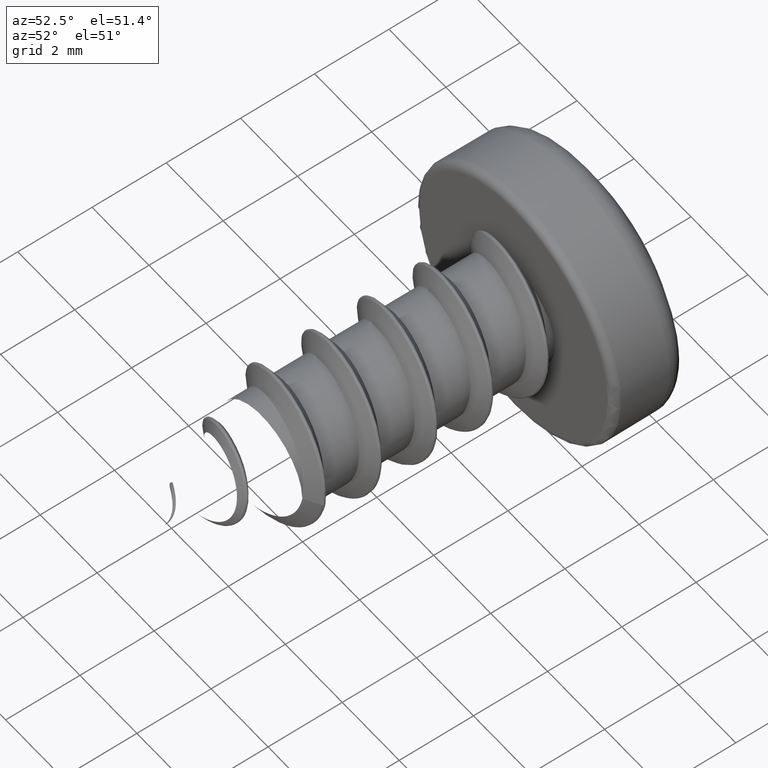
[diagram: clean part render]
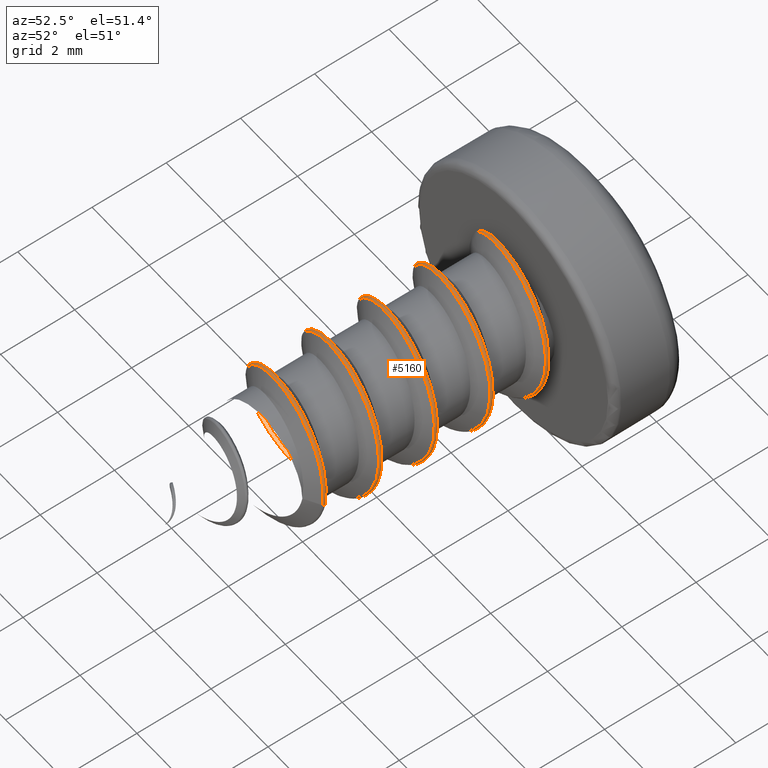
[diagram: same view with one face highlighted and labeled with its STEP entity id]
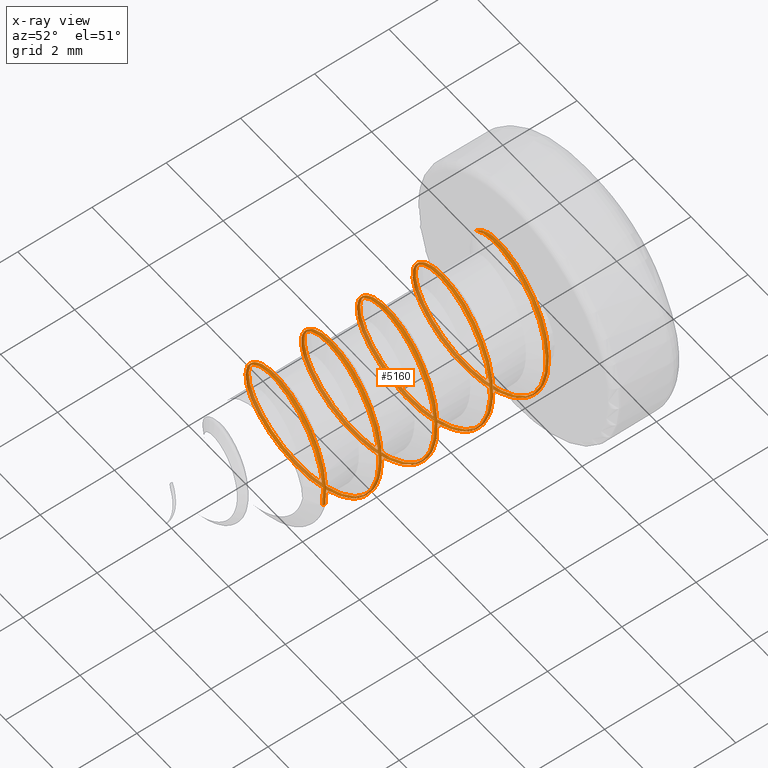
[diagram: x-ray of the same camera — body ghosted, the highlighted face saturated]
A machine part, auxiliary view. The second image highlights one B-rep face of the part: STEP entity #5160.
The next image is the same camera in x-ray: the body ghosted, the highlighted face saturated — about 29% of this face is hidden behind the body in this view.
In plain terms, the highlighted face is a freeform B-spline surface patch.
Its self-contained STEP definition (entity closure, byte-faithful):
#5 = CARTESIAN_POINT ( 'NONE',  ( 1.862500000000000711, -2.710357987040317607, 0.7714727599198899499 ) ) ;
#24 = CARTESIAN_POINT ( 'NONE',  ( -1.710945456923456565, 4.063939629255832742, -0.9086429365086204912 ) ) ;
#27 = CARTESIAN_POINT ( 'NONE',  ( 0.7559397513308986349, -1.650309892324152150, -1.824999999999998623 ) ) ;
#46 = CARTESIAN_POINT ( 'NONE',  ( 1.290469875665449795, -2.594957351945706758, 1.290469875665449795 ) ) ;
#48 = CARTESIAN_POINT ( 'NONE',  ( -1.290469875665448685, 2.568440107675848072, -1.290469875665448463 ) ) ;
#62 = CARTESIAN_POINT ( 'NONE',  ( 1.140452331705973138E-16, 3.570892012959682393, 1.862500000000000711 ) ) ;
#63 = CARTESIAN_POINT ( 'NONE',  ( -0.7559397513308980798, -0.9003098923241520390, 1.824999999999998845 ) ) ;
#82 = CARTESIAN_POINT ( 'NONE',  ( -1.825000000000001066, -1.938707351945706980, -0.7559397513308984129 ) ) ;
#84 = CARTESIAN_POINT ( 'NONE',  ( -1.290469875665448685, -0.4315598923241519835, -1.290469875665448463 ) ) ;
#102 = CARTESIAN_POINT ( 'NONE',  ( 1.862500000000000711, 1.695892012959682837, 0.000000000000000000 ) ) ;
#103 = CARTESIAN_POINT ( 'NONE',  ( -1.824999999999998845, -2.119059892324151484, 2.234980408443918722E-16 ) ) ;
#121 = CARTESIAN_POINT ( 'NONE',  ( 1.825000000000000622, 3.123792648054294130, -0.7559397513308999672 ) ) ;
#123 = CARTESIAN_POINT ( 'NONE',  ( -1.309063904724181437, 3.696701271350068652, 1.271875846606715266 ) ) ;
#132 = CARTESIAN_POINT ( 'NONE',  ( -0.9992396567757855230, 3.699999999999998845, 1.556508243976324257 ) ) ;
#143 = CARTESIAN_POINT ( 'NONE',  ( 0.7559397513308988570, -2.587809892324151040, 1.825000000000000844 ) ) ;
#145 = CARTESIAN_POINT ( 'NONE',  ( -1.825000000000001066, -1.938707351945706980, -0.7559397513308985239 ) ) ;
#149 = CARTESIAN_POINT ( 'NONE',  ( -1.046633242641360262, 3.699999999999998845, 1.526649482190231000 ) ) ;
#159 = CARTESIAN_POINT ( 'NONE',  ( 1.290469875665449795, 1.905042648054293020, 1.290469875665449795 ) ) ;
#188 = CARTESIAN_POINT ( 'NONE',  ( 1.290469875665449573, 1.443440107675849404, -1.290469875665450017 ) ) ;
#192 = CARTESIAN_POINT ( 'NONE',  ( 0.7559397513308989680, -2.501207351945707202, 1.825000000000000844 ) ) ;
#193 = CARTESIAN_POINT ( 'NONE',  ( 1.825000000000000844, 1.811292648054293020, 0.7559397513308988570 ) ) ;
#213 = CARTESIAN_POINT ( 'NONE',  ( -0.7559397513308997452, 1.162190107675849182, -1.825000000000000622 ) ) ;
#232 = CARTESIAN_POINT ( 'NONE',  ( 0.7559397513308993011, 2.849690107675848960, -1.825000000000000844 ) ) ;
#236 = CARTESIAN_POINT ( 'NONE',  ( 0.7559397513308989680, 1.998792648054293020, 1.825000000000000844 ) ) ;
#240 =( BOUNDED_CURVE ( )  B_SPLINE_CURVE ( 2, ( #4796, #3360, #1598, #192, #5907, #684, #5864, #3996, #3002, #145, #2969, #2654, #3507, #5030, #2089, #3069, #5977, #4552, #3095, #1689, #4486, #5048, #1630, #2156, #4982, #2114, #4024, #4509, #4190, #4500, #3060, #708, #3497, #2600, #1180, #4480, #3108, #1215, #1621, #2148, #1643, #1577, #2064, #2103, #658, #5929, #5488, #1137, #1599, #193, #5000, #236, #5465, #5405, #320, #4102, #2644, #1274, #3622, #4612, #281, #2665, #6032, #1256, #3645, #2211, #4589, #5991, #1722, #3601, #3127 ),
 .UNSPECIFIED., .F., .T. ) 
 B_SPLINE_CURVE_WITH_KNOTS ( ( 3, 2, 2, 2, 2, 2, 2, 2, 2, 2, 2, 2, 2, 2, 2, 2, 2, 2, 2, 2, 2, 2, 2, 2, 2, 2, 2, 2, 2, 2, 2, 2, 2, 2, 2, 3 ),
 ( 0.000000000000000000, 0.02500000000000000139, 0.05000000000000000278, 0.07499999999999999722, 0.1000000000000000056, 0.1250000000000000000, 0.1499999999999999944, 0.1749999999999999889, 0.2000000000000000111, 0.2250000000000000056, 0.2500000000000000000, 0.2750000000000000222, 0.2999999999999999889, 0.3250000000000000111, 0.3499999999999999778, 0.3750000000000000000, 0.4000000000000000222, 0.4249999999999999889, 0.4500000000000000111, 0.4749999999999999778, 0.5000000000000000000, 0.5250000000000000222, 0.5500000000000000444, 0.5749999999999999556, 0.5999999999999999778, 0.6250000000000000000, 0.6500000000000000222, 0.6750000000000000444, 0.6999999999999999556, 0.7249999999999999778, 0.7500000000000000000, 0.7750000000000000222, 0.8000000000000000444, 0.8249999999999999556, 0.8499999999999999778, 0.8642594644329699705 ),
 .UNSPECIFIED. ) 
 CURVE ( )  GEOMETRIC_REPRESENTATION_ITEM ( )  RATIONAL_B_SPLINE_CURVE ( ( 1.000000000000000000, 0.9238795325112867385, 1.000000000000000000, 0.9238795325112867385, 1.000000000000000000, 0.9238795325112867385, 1.000000000000000000, 0.9238795325112867385, 1.000000000000000000, 0.9238795325112867385, 1.000000000000000000, 0.9238795325112867385, 1.000000000000000000, 0.9238795325112867385, 1.000000000000000000, 0.9238795325112867385, 1.000000000000000000, 0.9238795325112867385, 1.000000000000000000, 0.9238795325112867385, 1.000000000000000000, 0.9238795325112867385, 1.000000000000000000, 0.9238795325112867385, 1.000000000000000000, 0.9238795325112867385, 1.000000000000000000, 0.9238795325112867385, 1.000000000000000000, 0.9238795325112867385, 1.000000000000000000, 0.9238795325112867385, 1.000000000000000000, 0.9238795325112867385, 1.000000000000000000, 0.9238795325112867385, 1.000000000000000000, 0.9238795325112867385, 1.000000000000000000, 0.9238795325112867385, 1.000000000000000000, 0.9238795325112867385, 1.000000000000000000, 0.9238795325112867385, 1.000000000000000000, 0.9238795325112867385, 1.000000000000000000, 0.9238795325112867385, 1.000000000000000000, 0.9238795325112867385, 1.000000000000000000, 0.9238795325112867385, 1.000000000000000000, 0.9238795325112867385, 1.000000000000000000, 0.9238795325112867385, 1.000000000000000000, 0.9238795325112867385, 1.000000000000000000, 0.9238795325112867385, 1.000000000000000000, 0.9238795325112867385, 1.000000000000000000, 0.9238795325112867385, 1.000000000000000000, 0.9238795325112867385, 1.000000000000000000, 0.9238795325112867385, 1.000000000000000000, 0.9565825160489458412, 0.9626938375514197954 ) ) 
 REPRESENTATION_ITEM ( '' )  );
#253 = CARTESIAN_POINT ( 'NONE',  ( 1.825000000000000844, 3.224690107675848960, 0.7559397513308987460 ) ) ;
#278 = CARTESIAN_POINT ( 'NONE',  ( 0.7559397513308988570, 0.4121901076758490157, 1.825000000000000844 ) ) ;
#281 = CARTESIAN_POINT ( 'NONE',  ( -3.352470612665880301E-16, 2.842542648054292798, -1.825000000000000622 ) ) ;
#295 = CARTESIAN_POINT ( 'NONE',  ( -1.316986379959945275, -2.284909257229540192, 1.316986379959945497 ) ) ;
#317 = CARTESIAN_POINT ( 'NONE',  ( 0.7714727599198900609, 0.4338407427704596420, 1.862500000000000711 ) ) ;
#320 = CARTESIAN_POINT ( 'NONE',  ( -1.290469875665449795, 2.280042648054293242, 1.290469875665449795 ) ) ;
#335 = CARTESIAN_POINT ( 'NONE',  ( 1.316986379959945497, -2.659909257229539747, 1.316986379959945497 ) ) ;
#357 = CARTESIAN_POINT ( 'NONE',  ( 1.140452331705973138E-16, 0.5275907427704598085, 1.862500000000000711 ) ) ;
#380 = CARTESIAN_POINT ( 'NONE',  ( -1.290469875665449795, 3.693440107675848960, 1.290469875665449795 ) ) ;
#400 = CARTESIAN_POINT ( 'NONE',  ( -1.316986379959945275, -2.241607987040317607, 1.316986379959945497 ) ) ;
#414 = ORIENTED_EDGE ( 'NONE', *, *, #4863, .T. ) ;
#424 = CARTESIAN_POINT ( 'NONE',  ( -1.316986379959945941, -0.3666079870403176066, -1.316986379959945275 ) ) ;
#426 = CARTESIAN_POINT ( 'NONE',  ( 1.290469875665448463, -2.681559892324151484, 1.290469875665448463 ) ) ;
#443 = CARTESIAN_POINT ( 'NONE',  ( -0.7714727599198899499, 3.621340742770459808, 1.862500000000000711 ) ) ;
#462 = CARTESIAN_POINT ( 'NONE',  ( -1.862500000000001155, 1.039642012959682171, -0.7714727599198896169 ) ) ;
#484 = CARTESIAN_POINT ( 'NONE',  ( 1.862500000000000488, 3.102142012959682393, -0.7714727599198910601 ) ) ;
#504 = CARTESIAN_POINT ( 'NONE',  ( -1.821781511545584431, 3.995009293815418250, -0.3873220548725441748 ) ) ;
#506 = CARTESIAN_POINT ( 'NONE',  ( -3.352470612665877343E-16, 1.255940107675848072, -1.824999999999998845 ) ) ;
#519 = CARTESIAN_POINT ( 'NONE',  ( -1.862500000000000711, 2.445892012959682837, 2.280904663411946276E-16 ) ) ;
#520 = CARTESIAN_POINT ( 'NONE',  ( 1.824999999999998845, 3.130940107675848516, 0.000000000000000000 ) ) ;
#538 = CARTESIAN_POINT ( 'NONE',  ( -0.7559397513308997452, -1.751207351945706758, -1.825000000000000622 ) ) ;
#541 = CARTESIAN_POINT ( 'NONE',  ( 1.824999999999998845, 1.630940107675848516, 0.000000000000000000 ) ) ;
#561 = CARTESIAN_POINT ( 'NONE',  ( -0.7714727599198899499, 3.664642012959681949, 1.862500000000000711 ) ) ;
#563 = CARTESIAN_POINT ( 'NONE',  ( 1.290469875665448463, 3.318440107675848516, 1.290469875665448463 ) ) ;
#585 = CARTESIAN_POINT ( 'NONE',  ( -1.825000000000000622, 2.467542648054293686, 2.234980408443920694E-16 ) ) ;
#587 = CARTESIAN_POINT ( 'NONE',  ( -1.290469875665448685, 1.068440107675848294, -1.290469875665448463 ) ) ;
#606 = CARTESIAN_POINT ( 'NONE',  ( 0.7559397513308993011, -0.06370735194570660564, -1.825000000000000844 ) ) ;
#620 = CARTESIAN_POINT ( 'NONE',  ( -0.7916440968191214012, 3.699999999999993516, 1.644361463903675880 ) ) ;
#627 = CARTESIAN_POINT ( 'NONE',  ( -1.676496890676674623, 4.085590264350444478, -0.8903481122836148787 ) ) ;
#637 = EDGE_CURVE ( 'NONE', #5445, #2212, #2455, .T. ) ;
#658 = CARTESIAN_POINT ( 'NONE',  ( -3.352470612665880301E-16, 1.342542648054293242, -1.825000000000000622 ) ) ;
#671 = CARTESIAN_POINT ( 'NONE',  ( -1.290469875665449795, 2.280042648054293242, 1.290469875665449795 ) ) ;
#680 = CARTESIAN_POINT ( 'NONE',  ( 1.825000000000000844, 1.724690107675848738, 0.7559397513308987460 ) ) ;
#684 = CARTESIAN_POINT ( 'NONE',  ( -0.7559397513308987460, -2.313707351945706758, 1.825000000000000844 ) ) ;
#705 = CARTESIAN_POINT ( 'NONE',  ( 0.7559397513308988570, 1.912190107675848960, 1.825000000000000844 ) ) ;
#708 = CARTESIAN_POINT ( 'NONE',  ( 1.825000000000000400, 0.1237926480542931307, -0.7559397513308999672 ) ) ;
#709 = ORIENTED_EDGE ( 'NONE', *, *, #2335, .T. ) ;
#730 = CARTESIAN_POINT ( 'NONE',  ( -1.290469875665449795, -2.306559892324151040, 1.290469875665449795 ) ) ;
#751 = CARTESIAN_POINT ( 'NONE',  ( 1.825000000000000622, 1.537190107675849626, -0.7559397513308999672 ) ) ;
#770 = CARTESIAN_POINT ( 'NONE',  ( -1.676496890676674623, 3.998987723972001529, -0.8903481122836148787 ) ) ;
#789 = CARTESIAN_POINT ( 'NONE',  ( 0.7714727599198903940, -0.1286592572295398862, -1.862500000000000488 ) ) ;
#806 = CARTESIAN_POINT ( 'NONE',  ( 1.316986379959945275, 1.465090742770460031, -1.316986379959945941 ) ) ;
#821 = CARTESIAN_POINT ( 'NONE',  ( -1.316986379959945275, 0.7150907427704600305, 1.316986379959945497 ) ) ;
#842 = CARTESIAN_POINT ( 'NONE',  ( 1.862500000000000711, -2.847409257229540192, 0.000000000000000000 ) ) ;
#867 = CARTESIAN_POINT ( 'NONE',  ( 1.140452331705973138E-16, 3.527590742770460253, 1.862500000000000711 ) ) ;
#888 = CARTESIAN_POINT ( 'NONE',  ( -1.821781511545584431, 3.951708023626194333, -0.3873220548725441748 ) ) ;
#901 =( BOUNDED_CURVE ( )  B_SPLINE_CURVE ( 3, ( #2794, #4187, #3252, #2340 ),
 .UNSPECIFIED., .F., .F. ) 
 B_SPLINE_CURVE_WITH_KNOTS ( ( 4, 4 ),
 ( 0.000000000000000000, 1.000000000000000000 ),
 .UNSPECIFIED. ) 
 CURVE ( )  GEOMETRIC_REPRESENTATION_ITEM ( )  RATIONAL_B_SPLINE_CURVE ( ( 1.000000000000000000, 0.6666666666666662966, 0.6666666666666662966, 1.000000000000000000 ) ) 
 REPRESENTATION_ITEM ( '' )  );
#904 = CARTESIAN_POINT ( 'NONE',  ( 1.140452331705973138E-16, -2.429107987040318495, 1.862500000000000711 ) ) ;
#906 = CARTESIAN_POINT ( 'NONE',  ( 0.7559397513308981909, -2.587809892324151928, 1.824999999999998845 ) ) ;
#923 = CARTESIAN_POINT ( 'NONE',  ( 1.862500000000000711, 0.2896420129596824489, 0.7714727599198899499 ) ) ;
#948 = CARTESIAN_POINT ( 'NONE',  ( -0.7714727599198910601, 2.683840742770459364, -1.862500000000000488 ) ) ;
#966 = CARTESIAN_POINT ( 'NONE',  ( -1.862500000000000711, 3.969685954065020894, -0.1958013590816750360 ) ) ;
#984 = CARTESIAN_POINT ( 'NONE',  ( 0.7559397513308988570, -1.001207351945706758, 1.825000000000000844 ) ) ;
#985 = CARTESIAN_POINT ( 'NONE',  ( -0.7559397513308980798, 2.099690107675847628, 1.824999999999998845 ) ) ;
#1004 = CARTESIAN_POINT ( 'NONE',  ( 1.140452331705973138E-16, 2.070892012959682393, 1.862500000000000711 ) ) ;
#1005 = CARTESIAN_POINT ( 'NONE',  ( 1.290469875665448463, 0.3184401076758482940, 1.290469875665448463 ) ) ;
#1023 = CARTESIAN_POINT ( 'NONE',  ( -0.7559397513308986349, -2.313707351945706758, 1.825000000000000844 ) ) ;
#1025 = CARTESIAN_POINT ( 'NONE',  ( -1.824999999999998845, 0.8809401076758479610, 2.234980408443918722E-16 ) ) ;
#1037 = ORIENTED_EDGE ( 'NONE', *, *, #637, .F. ) ;
#1044 = CARTESIAN_POINT ( 'NONE',  ( -1.825000000000001066, -0.4387073519457069248, -0.7559397513308984129 ) ) ;
#1046 = CARTESIAN_POINT ( 'NONE',  ( 1.117490204221959361E-16, 3.505940107675848516, 1.824999999999998845 ) ) ;
#1063 = CARTESIAN_POINT ( 'NONE',  ( -0.7559397513308997452, 2.748792648054293686, -1.825000000000000622 ) ) ;
#1064 = CARTESIAN_POINT ( 'NONE',  ( 1.824999999999998845, 1.724690107675847850, 0.7559397513308981909 ) ) ;
#1085 = CARTESIAN_POINT ( 'NONE',  ( -1.825000000000001066, 2.561292648054293242, -0.7559397513308984129 ) ) ;
#1100 = CARTESIAN_POINT ( 'NONE',  ( -1.137115467526152113, 3.699999999999997513, 1.460175469758742350 ) ) ;
#1106 = CARTESIAN_POINT ( 'NONE',  ( 1.825000000000000622, 1.623792648054293464, -0.7559397513308999672 ) ) ;
#1135 = CARTESIAN_POINT ( 'NONE',  ( -3.352470612665880301E-16, -1.744059892324150818, -1.825000000000000622 ) ) ;
#1137 = CARTESIAN_POINT ( 'NONE',  ( 1.825000000000000400, 1.623792648054293686, -0.7559397513308999672 ) ) ;
#1148 = CARTESIAN_POINT ( 'NONE',  ( 1.825000000000000622, 0.1237926480542931307, -0.7559397513308999672 ) ) ;
#1157 = CARTESIAN_POINT ( 'NONE',  ( 1.117490204221960347E-16, 2.005940107675848960, 1.825000000000000622 ) ) ;
#1177 = CARTESIAN_POINT ( 'NONE',  ( 1.825000000000000622, 0.1309401076758490989, 0.000000000000000000 ) ) ;
#1180 = CARTESIAN_POINT ( 'NONE',  ( 1.290469875665449795, 0.4050426480542933527, 1.290469875665449795 ) ) ;
#1194 = CARTESIAN_POINT ( 'NONE',  ( 1.290469875665449795, 0.3184401076758492932, 1.290469875665449795 ) ) ;
#1213 = CARTESIAN_POINT ( 'NONE',  ( -1.290469875665450017, -1.931559892324151040, -1.290469875665449795 ) ) ;
#1215 = CARTESIAN_POINT ( 'NONE',  ( -0.7559397513308987460, 0.6862926480542932417, 1.825000000000000844 ) ) ;
#1232 = CARTESIAN_POINT ( 'NONE',  ( -0.7714727599198910601, -0.3161592572295400805, -1.862500000000000488 ) ) ;
#1252 = CARTESIAN_POINT ( 'NONE',  ( 1.316986379959945497, 0.3400907427704600861, 1.316986379959945497 ) ) ;
#1256 = CARTESIAN_POINT ( 'NONE',  ( 1.825000000000000400, 3.123792648054294130, -0.7559397513308999672 ) ) ;
#1270 = CARTESIAN_POINT ( 'NONE',  ( 1.140452331705973138E-16, -0.9724092572295403025, 1.862500000000000711 ) ) ;
#1274 = CARTESIAN_POINT ( 'NONE',  ( -1.825000000000001066, 2.561292648054293686, -0.7559397513308985239 ) ) ;
#1292 = CARTESIAN_POINT ( 'NONE',  ( 1.316986379959945275, -1.534909257229539969, -1.316986379959945941 ) ) ;
#1314 = CARTESIAN_POINT ( 'NONE',  ( 1.862500000000000711, -1.347409257229540192, 0.000000000000000000 ) ) ;
#1332 = CARTESIAN_POINT ( 'NONE',  ( -1.316986379959945275, 3.715090742770459808, 1.316986379959945497 ) ) ;
#1352 = CARTESIAN_POINT ( 'NONE',  ( 1.862500000000000711, -1.304107987040317607, 0.000000000000000000 ) ) ;
#1374 = CARTESIAN_POINT ( 'NONE',  ( -0.7714727599198910601, -0.2728579870403175511, -1.862500000000000488 ) ) ;
#1377 = CARTESIAN_POINT ( 'NONE',  ( 1.117490204221959361E-16, -2.494059892324151928, 1.824999999999998845 ) ) ;
#1398 = CARTESIAN_POINT ( 'NONE',  ( 1.140452331705973138E-16, 0.5708920129596822823, 1.862500000000000711 ) ) ;
#1422 = CARTESIAN_POINT ( 'NONE',  ( -0.7714727599198910601, -1.772857987040317385, -1.862500000000000488 ) ) ;
#1441 = CARTESIAN_POINT ( 'NONE',  ( -1.862500000000001155, 2.539642012959682837, -0.7714727599198896169 ) ) ;
#1443 = CARTESIAN_POINT ( 'NONE',  ( 0.7559397513308981909, 1.912190107675848072, 1.824999999999998845 ) ) ;
#1462 = CARTESIAN_POINT ( 'NONE',  ( 1.862500000000000711, 3.289642012959682837, 0.7714727599198899499 ) ) ;
#1463 = CARTESIAN_POINT ( 'NONE',  ( 1.824999999999998845, 0.2246901076758482108, 0.7559397513308981909 ) ) ;
#1477 = CARTESIAN_POINT ( 'NONE',  ( 1.117490204221960347E-16, -2.407457351945706758, 1.825000000000000622 ) ) ;
#1479 = CARTESIAN_POINT ( 'NONE',  ( 1.824999999999998401, -1.462809892324152150, -0.7559397513308993011 ) ) ;
#1492 = CARTESIAN_POINT ( 'NONE',  ( 1.316986379959945275, 1.508392012959682393, -1.316986379959945941 ) ) ;
#1493 = CARTESIAN_POINT ( 'NONE',  ( -1.824999999999999067, -0.5253098923241520390, -0.7559397513308976357 ) ) ;
#1507 = VERTEX_POINT ( 'NONE', #3732 ) ;
#1510 = CARTESIAN_POINT ( 'NONE',  ( -3.352470612665880301E-16, -0.1574573519457067028, -1.825000000000000622 ) ) ;
#1511 = CARTESIAN_POINT ( 'NONE',  ( 1.824999999999998845, 0.1309401076758480997, 0.000000000000000000 ) ) ;
#1551 = CARTESIAN_POINT ( 'NONE',  ( 1.825000000000000622, 3.217542648054293242, 0.000000000000000000 ) ) ;
#1569 = CARTESIAN_POINT ( 'NONE',  ( 1.290469875665449795, 0.4050426480542933527, 1.290469875665449795 ) ) ;
#1577 = CARTESIAN_POINT ( 'NONE',  ( -1.825000000000001066, 1.061292648054293020, -0.7559397513308985239 ) ) ;
#1589 = CARTESIAN_POINT ( 'NONE',  ( -0.7559397513308986349, 3.686292648054294574, 1.825000000000000844 ) ) ;
#1596 = CARTESIAN_POINT ( 'NONE',  ( 1.825000000000000622, -1.462809892324151040, -0.7559397513308999672 ) ) ;
#1598 = CARTESIAN_POINT ( 'NONE',  ( 1.290469875665449795, -2.594957351945706758, 1.290469875665449795 ) ) ;
#1599 = CARTESIAN_POINT ( 'NONE',  ( 1.825000000000000622, 1.717542648054293686, 0.000000000000000000 ) ) ;
#1610 = CARTESIAN_POINT ( 'NONE',  ( -1.825000000000000844, 2.373792648054292798, 0.7559397513308989680 ) ) ;
#1618 = CARTESIAN_POINT ( 'NONE',  ( 0.7559397513308993011, -1.650309892324151040, -1.825000000000000844 ) ) ;
#1621 = CARTESIAN_POINT ( 'NONE',  ( -1.290469875665449795, 0.7800426480542932417, 1.290469875665449795 ) ) ;
#1630 = CARTESIAN_POINT ( 'NONE',  ( -1.290469875665449795, -0.7199573519457067583, 1.290469875665449795 ) ) ;
#1640 = CARTESIAN_POINT ( 'NONE',  ( 0.7559397513308993011, -0.1503098923241507068, -1.825000000000000844 ) ) ;
#1643 = CARTESIAN_POINT ( 'NONE',  ( -1.825000000000000622, 0.9675426480542930197, 2.234980408443920694E-16 ) ) ;
#1660 = CARTESIAN_POINT ( 'NONE',  ( 1.290469875665449573, 2.943440107675848960, -1.290469875665450017 ) ) ;
#1682 = CARTESIAN_POINT ( 'NONE',  ( -0.7559397513308997452, -1.837809892324150818, -1.825000000000000622 ) ) ;
#1689 = CARTESIAN_POINT ( 'NONE',  ( 0.7559397513308989680, -1.001207351945706758, 1.825000000000000844 ) ) ;
#1701 = CARTESIAN_POINT ( 'NONE',  ( 1.862500000000000488, 0.05884074277045982931, -0.7714727599198910601 ) ) ;
#1721 = CARTESIAN_POINT ( 'NONE',  ( -0.7714727599198899499, -2.378659257229539747, 1.862500000000000711 ) ) ;
#1722 = CARTESIAN_POINT ( 'NONE',  ( 1.117490204221960347E-16, 3.592542648054293686, 1.825000000000000622 ) ) ;
#1741 = CARTESIAN_POINT ( 'NONE',  ( 1.316986379959945275, -0.03490925722954026089, -1.316986379959945941 ) ) ;
#1759 = CARTESIAN_POINT ( 'NONE',  ( 1.316986379959945497, 1.840090742770459586, 1.316986379959945497 ) ) ;
#1775 = CARTESIAN_POINT ( 'NONE',  ( -0.7714727599198899499, 0.6213407427704598085, 1.862500000000000711 ) ) ;
#1797 = CARTESIAN_POINT ( 'NONE',  ( -1.316986379959945941, 2.590090742770460253, -1.316986379959945275 ) ) ;
#1818 = CARTESIAN_POINT ( 'NONE',  ( -1.862500000000000711, -2.147857987040317163, 0.7714727599198900609 ) ) ;
#1839 = CARTESIAN_POINT ( 'NONE',  ( 1.316986379959945275, -1.491607987040317607, -1.316986379959945941 ) ) ;
#1861 = CARTESIAN_POINT ( 'NONE',  ( -1.316986379959945275, 0.7583920129596823934, 1.316986379959945497 ) ) ;
#1884 = CARTESIAN_POINT ( 'NONE',  ( 1.316986379959945497, 0.3833920129596825599, 1.316986379959945497 ) ) ;
#1907 = CARTESIAN_POINT ( 'NONE',  ( -1.862500000000000711, 3.945892012959682837, 2.280904663411946276E-16 ) ) ;
#1908 = CARTESIAN_POINT ( 'NONE',  ( 1.117490204221959361E-16, 2.005940107675848072, 1.824999999999998845 ) ) ;
#1928 = CARTESIAN_POINT ( 'NONE',  ( -1.862500000000000711, 2.352142012959682393, 0.7714727599198900609 ) ) ;
#1929 = CARTESIAN_POINT ( 'NONE',  ( -0.7559397513308990790, -0.3378098923241518725, -1.824999999999998401 ) ) ;
#1946 = CARTESIAN_POINT ( 'NONE',  ( 1.316986379959945497, 3.383392012959682393, 1.316986379959945497 ) ) ;
#1948 = CARTESIAN_POINT ( 'NONE',  ( -1.824999999999998845, -2.212809892324151928, 0.7559397513308984129 ) ) ;
#1965 = CARTESIAN_POINT ( 'NONE',  ( -1.290469875665450017, -0.3449573519457068693, -1.290469875665449795 ) ) ;
#1966 = CARTESIAN_POINT ( 'NONE',  ( -1.824999999999999067, 0.9746901076758479610, -0.7559397513308976357 ) ) ;
#1987 = CARTESIAN_POINT ( 'NONE',  ( 1.290469875665449795, -1.094957351945706980, 1.290469875665449795 ) ) ;
#1989 = CARTESIAN_POINT ( 'NONE',  ( 1.290469875665448241, -1.556559892324151928, -1.290469875665448685 ) ) ;
#2033 = CARTESIAN_POINT ( 'NONE',  ( -3.352470612665880301E-16, 1.342542648054293242, -1.825000000000000622 ) ) ;
#2053 = CARTESIAN_POINT ( 'NONE',  ( -3.352470612665880301E-16, 2.842542648054292798, -1.825000000000000622 ) ) ;
#2064 = CARTESIAN_POINT ( 'NONE',  ( -1.290469875665450017, 1.155042648054293242, -1.290469875665449795 ) ) ;
#2073 = CARTESIAN_POINT ( 'NONE',  ( 0.7559397513308988570, 1.998792648054293020, 1.825000000000000844 ) ) ;
#2080 = CARTESIAN_POINT ( 'NONE',  ( 1.825000000000000844, 0.2246901076758492100, 0.7559397513308987460 ) ) ;
#2089 = CARTESIAN_POINT ( 'NONE',  ( 1.290469875665449573, -1.469957351945706758, -1.290469875665450017 ) ) ;
#2092 = CARTESIAN_POINT ( 'NONE',  ( 1.290469875665449573, 3.030042648054293242, -1.290469875665450017 ) ) ;
#2094 = CARTESIAN_POINT ( 'NONE',  ( -1.327114493337112622, 3.700000000259393573, 1.252753815230503331 ) ) ;
#2100 = CARTESIAN_POINT ( 'NONE',  ( 1.117490204221960347E-16, -0.9940598923241510398, 1.825000000000000622 ) ) ;
#2103 = CARTESIAN_POINT ( 'NONE',  ( -0.7559397513308997452, 1.248792648054293242, -1.825000000000000400 ) ) ;
#2114 = CARTESIAN_POINT ( 'NONE',  ( -1.825000000000001066, -0.4387073519457069248, -0.7559397513308985239 ) ) ;
#2123 = CARTESIAN_POINT ( 'NONE',  ( -0.7559397513308997452, 2.662190107675848516, -1.825000000000000622 ) ) ;
#2144 = CARTESIAN_POINT ( 'NONE',  ( -1.825000000000001066, -0.5253098923241510398, -0.7559397513308984129 ) ) ;
#2148 = CARTESIAN_POINT ( 'NONE',  ( -1.825000000000000844, 0.8737926480542933527, 0.7559397513308990790 ) ) ;
#2156 = CARTESIAN_POINT ( 'NONE',  ( -1.825000000000000844, -0.6262073519457066473, 0.7559397513308990790 ) ) ;
#2166 = CARTESIAN_POINT ( 'NONE',  ( 1.290469875665449573, -0.05655989232415106760, -1.290469875665450017 ) ) ;
#2188 = CARTESIAN_POINT ( 'NONE',  ( 1.862500000000000711, -1.253659257229539969, 0.7714727599198899499 ) ) ;
#2208 = CARTESIAN_POINT ( 'NONE',  ( -1.862500000000000711, 0.9025907427704598085, 2.280904663411946276E-16 ) ) ;
#2211 = CARTESIAN_POINT ( 'NONE',  ( 1.825000000000000844, 3.311292648054293686, 0.7559397513308988570 ) ) ;
#2212 = VERTEX_POINT ( 'NONE', #5099 ) ;
#2226 = CARTESIAN_POINT ( 'NONE',  ( 1.862500000000000488, 1.558840742770460253, -0.7714727599198910601 ) ) ;
#2247 = CARTESIAN_POINT ( 'NONE',  ( -0.7714727599198899499, 2.121340742770459808, 1.862500000000000711 ) ) ;
#2269 = CARTESIAN_POINT ( 'NONE',  ( -0.7714727599198910601, -1.816159257229540192, -1.862500000000000488 ) ) ;
#2290 = CARTESIAN_POINT ( 'NONE',  ( 1.862500000000000711, 3.152590742770459808, 0.000000000000000000 ) ) ;
#2309 = CARTESIAN_POINT ( 'NONE',  ( 1.862500000000000711, -1.210357987040317607, 0.7714727599198899499 ) ) ;
#2311 = CARTESIAN_POINT ( 'NONE',  ( 1.824999999999998845, -2.775309892324151928, 0.7559397513308981909 ) ) ;
#2329 = CARTESIAN_POINT ( 'NONE',  ( -1.862500000000000711, 3.902590742770459808, 2.280904663411946276E-16 ) ) ;
#2335 = EDGE_CURVE ( 'NONE', #4974, #1507, #240, .T. ) ;
#2340 = CARTESIAN_POINT ( 'NONE',  ( 1.825000000000000622, -2.782457351945706758, 0.000000000000000000 ) ) ;
#2355 = CARTESIAN_POINT ( 'NONE',  ( 1.862500000000000488, 0.1021420129596822962, -0.7714727599198910601 ) ) ;
#2377 = CARTESIAN_POINT ( 'NONE',  ( -1.862500000000000711, 2.308840742770459808, 0.7714727599198900609 ) ) ;
#2395 = CARTESIAN_POINT ( 'NONE',  ( -0.7714727599198910601, 1.227142012959682393, -1.862500000000000488 ) ) ;
#2396 = CARTESIAN_POINT ( 'NONE',  ( 0.7559397513308986349, 2.849690107675848072, -1.824999999999998623 ) ) ;
#2416 = CARTESIAN_POINT ( 'NONE',  ( 1.862500000000000711, 3.195892012959682393, 0.000000000000000000 ) ) ;
#2417 = CARTESIAN_POINT ( 'NONE',  ( -0.7559397513308980798, 0.5996901076758480720, 1.824999999999998845 ) ) ;
#2438 = CARTESIAN_POINT ( 'NONE',  ( 1.825000000000000844, -1.188707351945706758, 0.7559397513308987460 ) ) ;
#2439 = CARTESIAN_POINT ( 'NONE',  ( -1.824999999999998845, 2.287190107675848516, 0.7559397513308984129 ) ) ;
#2455 =( BOUNDED_CURVE ( )  B_SPLINE_CURVE ( 2, ( #4295, #2311, #426, #906, #1377, #5204, #3864, #1948, #103, #5757, #3427, #4860, #5283, #27, #1989, #1479, #2943, #2479, #5740, #4824, #5775, #63, #2876, #2459, #3392, #1493, #84, #1929, #3351, #5339, #4351, #5303, #1511, #1463, #1005, #3828, #4332, #2417, #4809, #5821, #1025, #1966, #587, #4840, #506, #5323, #5265, #3905, #541, #1064, #2900, #1443, #1908, #985, #2964, #2439, #4312, #2919, #48, #3411, #5799, #2396, #3373, #4784, #520, #3849, #563, #3887, #1046, #4373, #3512, #123, #2094 ),
 .UNSPECIFIED., .F., .T. ) 
 B_SPLINE_CURVE_WITH_KNOTS ( ( 3, 2, 2, 2, 2, 2, 2, 2, 2, 2, 2, 2, 2, 2, 2, 2, 2, 2, 2, 2, 2, 2, 2, 2, 2, 2, 2, 2, 2, 2, 2, 2, 2, 2, 2, 2, 3 ),
 ( 0.000000000000000000, 0.02757166055678410971, 0.05514332111356821942, 0.08271498167035232219, 0.1102866422271364388, 0.1378583027839205277, 0.1654299633407046444, 0.1930016238974887333, 0.2205732844542728777, 0.2481449450110569666, 0.2757166055678410554, 0.3032882661246252276, 0.3308599266814092887, 0.3584315872381934054, 0.3860032477949774665, 0.4135749083517615832, 0.4411465689085457553, 0.4687182294653298165, 0.4962898900221139331, 0.5238615505788979387, 0.5514332111356821109, 0.5790048716924662831, 0.6065765322492504552, 0.6341481928060344053, 0.6617198533628185775, 0.6892915139196026386, 0.7168631744763868108, 0.7444348350331708719, 0.7720064955899549330, 0.7995781561467391052, 0.8271498167035231663, 0.8547214772603073385, 0.8822931378170915107, 0.9098647983738755718, 0.9374364589306596329, 0.9650081194874438051, 0.9660432758528956221 ),
 .UNSPECIFIED. ) 
 CURVE ( )  GEOMETRIC_REPRESENTATION_ITEM ( )  RATIONAL_B_SPLINE_CURVE ( ( 1.000000000000000000, 0.9238795325112867385, 1.000000000000000000, 0.9238795325112867385, 1.000000000000000000, 0.9238795325112867385, 1.000000000000000000, 0.9238795325112867385, 1.000000000000000000, 0.9238795325112867385, 1.000000000000000000, 0.9238795325112867385, 1.000000000000000000, 0.9238795325112867385, 1.000000000000000000, 0.9238795325112867385, 1.000000000000000000, 0.9238795325112867385, 1.000000000000000000, 0.9238795325112867385, 1.000000000000000000, 0.9238795325112867385, 1.000000000000000000, 0.9238795325112867385, 1.000000000000000000, 0.9238795325112867385, 1.000000000000000000, 0.9238795325112867385, 1.000000000000000000, 0.9238795325112867385, 1.000000000000000000, 0.9238795325112867385, 1.000000000000000000, 0.9238795325112867385, 1.000000000000000000, 0.9238795325112867385, 1.000000000000000000, 0.9238795325112867385, 1.000000000000000000, 0.9238795325112867385, 1.000000000000000000, 0.9238795325112867385, 1.000000000000000000, 0.9238795325112867385, 1.000000000000000000, 0.9238795325112867385, 1.000000000000000000, 0.9238795325112867385, 1.000000000000000000, 0.9238795325112867385, 1.000000000000000000, 0.9238795325112867385, 1.000000000000000000, 0.9238795325112867385, 1.000000000000000000, 0.9238795325112867385, 1.000000000000000000, 0.9238795325112867385, 1.000000000000000000, 0.9238795325112867385, 1.000000000000000000, 0.9238795325112867385, 1.000000000000000000, 0.9238795325112867385, 1.000000000000000000, 0.9238795325112867385, 1.000000000000000000, 0.9238795325112867385, 1.000000000000000000, 0.9238795325112867385, 1.000000000000000000, 0.9971421167651534079, 0.9944988274983542764 ) ) 
 REPRESENTATION_ITEM ( '' )  );
#2458 = CARTESIAN_POINT ( 'NONE',  ( 1.825000000000000844, -2.688707351945706758, 0.7559397513308987460 ) ) ;
#2459 = CARTESIAN_POINT ( 'NONE',  ( -1.824999999999998845, -0.7128098923241518170, 0.7559397513308984129 ) ) ;
#2476 = CARTESIAN_POINT ( 'NONE',  ( 0.7714727599198903940, 1.414642012959682393, -1.862500000000000488 ) ) ;
#2479 = CARTESIAN_POINT ( 'NONE',  ( 1.824999999999998845, -1.275309892324151928, 0.7559397513308981909 ) ) ;
#2497 = CARTESIAN_POINT ( 'NONE',  ( -1.290469875665449795, 0.7800426480542932417, 1.290469875665449795 ) ) ;
#2517 = CARTESIAN_POINT ( 'NONE',  ( 1.117490204221960347E-16, 2.092542648054293242, 1.825000000000000622 ) ) ;
#2548 = CARTESIAN_POINT ( 'NONE',  ( 0.7559397513308988570, 0.4987926480542930197, 1.825000000000000844 ) ) ;
#2559 = CARTESIAN_POINT ( 'NONE',  ( 1.117490204221960347E-16, -2.494059892324151040, 1.825000000000000622 ) ) ;
#2571 = CARTESIAN_POINT ( 'NONE',  ( 1.825000000000000844, 3.311292648054293686, 0.7559397513308987460 ) ) ;
#2579 = CARTESIAN_POINT ( 'NONE',  ( -1.290469875665449795, 0.6934401076758491822, 1.290469875665449795 ) ) ;
#2598 = CARTESIAN_POINT ( 'NONE',  ( -1.290469875665449795, 2.193440107675849404, 1.290469875665449795 ) ) ;
#2600 = CARTESIAN_POINT ( 'NONE',  ( 1.825000000000000844, 0.3112926480542932972, 0.7559397513308988570 ) ) ;
#2617 = CARTESIAN_POINT ( 'NONE',  ( 1.825000000000000622, 3.037190107675848516, -0.7559397513308999672 ) ) ;
#2640 = CARTESIAN_POINT ( 'NONE',  ( 1.290469875665449795, -1.181559892324151040, 1.290469875665449795 ) ) ;
#2644 = CARTESIAN_POINT ( 'NONE',  ( -1.825000000000000622, 2.467542648054293686, 2.234980408443920694E-16 ) ) ;
#2654 = CARTESIAN_POINT ( 'NONE',  ( -0.7559397513308997452, -1.751207351945706758, -1.825000000000000400 ) ) ;
#2664 = CARTESIAN_POINT ( 'NONE',  ( 1.117490204221960347E-16, 3.505940107675849404, 1.825000000000000622 ) ) ;
#2665 = CARTESIAN_POINT ( 'NONE',  ( 0.7559397513308993011, 2.936292648054293686, -1.825000000000000844 ) ) ;
#2680 = CARTESIAN_POINT ( 'NONE',  ( -0.7714727599198910601, 1.183840742770460031, -1.862500000000000488 ) ) ;
#2700 = CARTESIAN_POINT ( 'NONE',  ( 1.862500000000000711, 1.652590742770460253, 0.000000000000000000 ) ) ;
#2722 = CARTESIAN_POINT ( 'NONE',  ( -1.825000000000000844, 3.904734048781188349, -0.1918590498384198650 ) ) ;
#2742 = CARTESIAN_POINT ( 'NONE',  ( -1.316986379959945941, 1.090090742770459808, -1.316986379959945275 ) ) ;
#2762 = CARTESIAN_POINT ( 'NONE',  ( -1.710945456923456565, 4.020638359066610157, -0.9086429365086204912 ) ) ;
#2783 = CARTESIAN_POINT ( 'NONE',  ( -0.7714727599198899499, -0.8353579870403176066, 1.862500000000000711 ) ) ;
#2794 = CARTESIAN_POINT ( 'NONE',  ( 1.825000000000000622, -2.869059892324151040, 0.000000000000000000 ) ) ;
#2802 = CARTESIAN_POINT ( 'NONE',  ( 1.862500000000000711, 0.1958920129596824211, 0.000000000000000000 ) ) ;
#2825 = CARTESIAN_POINT ( 'NONE',  ( 1.862500000000000488, -1.397857987040317829, -0.7714727599198910601 ) ) ;
#2849 = CARTESIAN_POINT ( 'NONE',  ( -1.862500000000000711, 3.926384683875797865, -0.1958013590816750360 ) ) ;
#2875 = CARTESIAN_POINT ( 'NONE',  ( 1.825000000000000622, -1.376207351945706980, -0.7559397513308999672 ) ) ;
#2876 = CARTESIAN_POINT ( 'NONE',  ( -1.290469875665448463, -0.8065598923241518170, 1.290469875665448463 ) ) ;
#2898 = CARTESIAN_POINT ( 'NONE',  ( 1.825000000000000622, -2.782457351945706758, 0.000000000000000000 ) ) ;
#2900 = CARTESIAN_POINT ( 'NONE',  ( 1.290469875665448463, 1.818440107675848072, 1.290469875665448463 ) ) ;
#2918 = CARTESIAN_POINT ( 'NONE',  ( -1.825000000000000622, -0.5324573519457065363, 2.234980408443920694E-16 ) ) ;
#2919 = CARTESIAN_POINT ( 'NONE',  ( -1.824999999999999067, 2.474690107675848516, -0.7559397513308976357 ) ) ;
#2921 = EDGE_LOOP ( 'NONE', ( #709, #3042, #1037, #414 ) ) ;
#2940 = CARTESIAN_POINT ( 'NONE',  ( -1.290469875665450017, -1.844957351945706980, -1.290469875665449795 ) ) ;
#2943 = CARTESIAN_POINT ( 'NONE',  ( 1.824999999999998845, -1.369059892324151928, 0.000000000000000000 ) ) ;
#2963 = CARTESIAN_POINT ( 'NONE',  ( -0.7714727599198910601, 2.727142012959682393, -1.862500000000000488 ) ) ;
#2964 = CARTESIAN_POINT ( 'NONE',  ( -1.290469875665448463, 2.193440107675848516, 1.290469875665448463 ) ) ;
#2969 = CARTESIAN_POINT ( 'NONE',  ( -1.290469875665450017, -1.844957351945706980, -1.290469875665449795 ) ) ;
#2976 = CARTESIAN_POINT ( 'NONE',  ( -0.7559397513308986349, 2.186292648054293242, 1.825000000000000844 ) ) ;
#3002 = CARTESIAN_POINT ( 'NONE',  ( -1.825000000000000622, -2.032457351945706758, 2.234980408443920694E-16 ) ) ;
#3011 = CARTESIAN_POINT ( 'NONE',  ( 1.825000000000000622, 0.2175426480542932139, 0.000000000000000000 ) ) ;
#3033 = CARTESIAN_POINT ( 'NONE',  ( 0.7559397513308988570, -1.087809892324151262, 1.825000000000000844 ) ) ;
#3042 = ORIENTED_EDGE ( 'NONE', *, *, #5627, .T. ) ;
#3046 = CARTESIAN_POINT ( 'NONE',  ( 1.117490204221960347E-16, 3.592542648054293686, 1.825000000000000622 ) ) ;
#3055 = CARTESIAN_POINT ( 'NONE',  ( -1.825000000000000622, -2.119059892324150596, 2.234980408443920694E-16 ) ) ;
#3060 = CARTESIAN_POINT ( 'NONE',  ( 1.290469875665449573, 0.03004264805429304394, -1.290469875665450017 ) ) ;
#3069 = CARTESIAN_POINT ( 'NONE',  ( 1.825000000000000400, -1.376207351945706980, -0.7559397513308999672 ) ) ;
#3083 = CARTESIAN_POINT ( 'NONE',  ( -3.352470612665880301E-16, 2.755940107675848960, -1.825000000000000622 ) ) ;
#3095 = CARTESIAN_POINT ( 'NONE',  ( 1.290469875665449795, -1.094957351945706980, 1.290469875665449795 ) ) ;
#3106 = CARTESIAN_POINT ( 'NONE',  ( 1.117490204221960347E-16, 0.5059401076758489602, 1.825000000000000622 ) ) ;
#3108 = CARTESIAN_POINT ( 'NONE',  ( 1.117490204221960347E-16, 0.5925426480542931307, 1.825000000000000622 ) ) ;
#3125 = CARTESIAN_POINT ( 'NONE',  ( -1.290469875665450017, -0.4315598923241509843, -1.290469875665449795 ) ) ;
#3127 = CARTESIAN_POINT ( 'NONE',  ( -0.7916440968191214012, 3.699999999999993516, 1.644361463903675880 ) ) ;
#3147 = CARTESIAN_POINT ( 'NONE',  ( -1.862500000000000711, -0.6911592572295399695, 0.7714727599198900609 ) ) ;
#3165 = CARTESIAN_POINT ( 'NONE',  ( 0.7714727599198900609, -2.566159257229539747, 1.862500000000000711 ) ) ;
#3187 = CARTESIAN_POINT ( 'NONE',  ( 0.7714727599198900609, 1.933840742770459808, 1.862500000000000711 ) ) ;
#3202 = CARTESIAN_POINT ( 'NONE',  ( 0.7714727599198903940, 1.371340742770459808, -1.862500000000000488 ) ) ;
#3221 = CARTESIAN_POINT ( 'NONE',  ( 1.862500000000000488, -1.441159257229540192, -0.7714727599198910601 ) ) ;
#3244 = CARTESIAN_POINT ( 'NONE',  ( 0.7714727599198900609, -2.522857987040317163, 1.862500000000000711 ) ) ;
#3252 = CARTESIAN_POINT ( 'NONE',  ( 1.862500000000001155, -2.804107987040318051, 0.000000000000000000 ) ) ;
#3262 = CARTESIAN_POINT ( 'NONE',  ( -1.862500000000000711, -0.5541079870403174956, 2.280904663411946276E-16 ) ) ;
#3279 = CARTESIAN_POINT ( 'NONE',  ( -3.421356995117918921E-16, -1.679107987040317607, -1.862500000000000711 ) ) ;
#3307 = CARTESIAN_POINT ( 'NONE',  ( 1.316986379959945497, -2.616607987040317607, 1.316986379959945497 ) ) ;
#3330 = CARTESIAN_POINT ( 'NONE',  ( -1.862500000000000711, -2.054107987040318051, 2.280904663411946276E-16 ) ) ;
#3350 = CARTESIAN_POINT ( 'NONE',  ( -1.825000000000000844, -2.126207351945706758, 0.7559397513308989680 ) ) ;
#3351 = CARTESIAN_POINT ( 'NONE',  ( -3.352470612665877343E-16, -0.2440598923241517892, -1.824999999999998845 ) ) ;
#3360 = CARTESIAN_POINT ( 'NONE',  ( 1.825000000000000844, -2.688707351945706758, 0.7559397513308988570 ) ) ;
#3371 = CARTESIAN_POINT ( 'NONE',  ( -1.766363484234520387, 4.029474461535625274, -0.6479824956905821942 ) ) ;
#3373 = CARTESIAN_POINT ( 'NONE',  ( 1.290469875665448241, 2.943440107675848072, -1.290469875665448685 ) ) ;
#3391 = CARTESIAN_POINT ( 'NONE',  ( 0.7714727599198900609, 1.977142012959682171, 1.862500000000000711 ) ) ;
#3392 = CARTESIAN_POINT ( 'NONE',  ( -1.824999999999998845, -0.6190598923241517060, 2.234980408443918722E-16 ) ) ;
#3410 = CARTESIAN_POINT ( 'NONE',  ( -1.862500000000000711, 3.852142012959681949, 0.7714727599198900609 ) ) ;
#3411 = CARTESIAN_POINT ( 'NONE',  ( -0.7559397513308990790, 2.662190107675847628, -1.824999999999998401 ) ) ;
#3427 = CARTESIAN_POINT ( 'NONE',  ( -1.290469875665448685, -1.931559892324151928, -1.290469875665448463 ) ) ;
#3446 = CARTESIAN_POINT ( 'NONE',  ( 1.825000000000000622, 1.717542648054293686, 0.000000000000000000 ) ) ;
#3469 = CARTESIAN_POINT ( 'NONE',  ( 0.7559397513308993011, 2.936292648054293686, -1.825000000000000844 ) ) ;
#3482 = CARTESIAN_POINT ( 'NONE',  ( -1.260086393355471790, 3.700000000037344972, 1.343582090477921209 ) ) ;
#3488 = CARTESIAN_POINT ( 'NONE',  ( -1.825000000000000844, 3.873792648054292798, 0.7559397513308989680 ) ) ;
#3497 = CARTESIAN_POINT ( 'NONE',  ( 1.825000000000000622, 0.2175426480542932139, 0.000000000000000000 ) ) ;
#3507 = CARTESIAN_POINT ( 'NONE',  ( -3.352470612665880301E-16, -1.657457351945706758, -1.825000000000000622 ) ) ;
#3510 = CARTESIAN_POINT ( 'NONE',  ( 0.7559397513308993011, 1.436292648054293464, -1.825000000000000844 ) ) ;
#3512 = CARTESIAN_POINT ( 'NONE',  ( -1.290469875665448463, 3.693440107675848072, 1.290469875665448463 ) ) ;
#3520 = CARTESIAN_POINT ( 'NONE',  ( 1.825000000000000622, 1.630940107675849626, 0.000000000000000000 ) ) ;
#3539 = CARTESIAN_POINT ( 'NONE',  ( -1.825000000000000622, 2.380940107675849404, 2.234980408443920694E-16 ) ) ;
#3558 = CARTESIAN_POINT ( 'NONE',  ( -3.352470612665880301E-16, 1.255940107675849182, -1.825000000000000622 ) ) ;
#3578 = CARTESIAN_POINT ( 'NONE',  ( 1.290469875665449795, 3.318440107675849404, 1.290469875665449795 ) ) ;
#3598 = CARTESIAN_POINT ( 'NONE',  ( -1.825000000000000622, -0.6190598923241507068, 2.234980408443920694E-16 ) ) ;
#3601 = CARTESIAN_POINT ( 'NONE',  ( -0.4164312343140180728, 3.644187541907547789, 1.825000000000000844 ) ) ;
#3619 = CARTESIAN_POINT ( 'NONE',  ( -1.316986379959945941, -1.909909257229540192, -1.316986379959945275 ) ) ;
#3622 = CARTESIAN_POINT ( 'NONE',  ( -1.290469875665450017, 2.655042648054293686, -1.290469875665449795 ) ) ;
#3643 = CARTESIAN_POINT ( 'NONE',  ( -3.421356995117918921E-16, 1.277590742770460031, -1.862500000000000711 ) ) ;
#3645 = CARTESIAN_POINT ( 'NONE',  ( 1.825000000000000622, 3.217542648054293242, 0.000000000000000000 ) ) ;
#3660 = CARTESIAN_POINT ( 'NONE',  ( -1.316986379959945941, -0.4099092572295401360, -1.316986379959945275 ) ) ;
#3669 =( BOUNDED_SURFACE ( )  B_SPLINE_SURFACE ( 3, 2, ( 
 ( #3912, #4418, #5862, #143, #2559, #4522, #730, #5483, #3055, #5904, #1213, #1682, #1135, #1618, #4456, #1596, #4996, #4013, #2640, #3033, #2100, #5989, #5019, #4949, #3598, #2144, #3125, #4040, #4496, #1640, #2166, #5444, #1177, #2080, #1194, #278, #3106, #5424, #2579, #3971, #5926, #4971, #5461, #213, #3558, #4061, #188, #751, #3520, #680, #3994, #705, #1157, #5506, #2598, #5948, #3539, #4477, #4544, #2123, #3083, #232, #1660, #2617, #5966, #253, #3578, #5039, #2664, #5568, #380, #5526, #4647, #2722, #4629, #6096, #770 ),
 ( #842, #4586, #335, #3165, #6079, #1721, #295, #5083, #4158, #6008, #3619, #2269, #4119, #6029, #1292, #3221, #1314, #2188, #4139, #4609, #1270, #5103, #4563, #3147, #4081, #4098, #3660, #1232, #5548, #789, #1741, #1701, #5061, #5587, #1252, #317, #357, #1775, #821, #5141, #2208, #5602, #2742, #2680, #3643, #3202, #806, #2226, #2700, #6052, #1759, #3187, #5125, #2247, #3679, #2377, #5244, #3721, #1797, #948, #3703, #6114, #4674, #5628, #2290, #5165, #5180, #3738, #867, #443, #1332, #5718, #2329, #2849, #888, #4177, #2762 ),
 ( #4714, #5, #3307, #3244, #904, #3790, #400, #1818, #3330, #4201, #4763, #1422, #3279, #5202, #1839, #2825, #1352, #2309, #4692, #5670, #5651, #2783, #6136, #6157, #3262, #4267, #424, #1374, #4227, #5221, #3765, #2355, #2802, #923, #1884, #4246, #1398, #4737, #1861, #5692, #6183, #462, #5337, #2395, #4807, #2476, #1492, #3808, #102, #4839, #5819, #3391, #1004, #4331, #4859, #1928, #519, #1441, #3863, #2963, #5797, #4782, #5282, #484, #2416, #1462, #1946, #5756, #62, #561, #5738, #3410, #1907, #966, #504, #3371, #24 ),
 ( #2898, #2458, #46, #3848, #1477, #1023, #4294, #3350, #3826, #82, #2940, #538, #5302, #5264, #4372, #2875, #4823, #2438, #1987, #984, #5774, #3886, #4350, #4310, #2918, #1044, #1965, #5322, #1510, #606, #4469, #1148, #3011, #4923, #1569, #2548, #5361, #4903, #2497, #4430, #4880, #3926, #5837, #5877, #2033, #3510, #5436, #1106, #3446, #4939, #159, #2073, #2517, #2976, #671, #1610, #585, #1085, #3904, #1063, #2053, #3469, #2092, #121, #1551, #2571, #4449, #4390, #3046, #1589, #5918, #3488, #3944, #5396, #4965, #5377, #627 ) ),
 .UNSPECIFIED., .F., .F., .F. ) 
 B_SPLINE_SURFACE_WITH_KNOTS ( ( 4, 4 ),
 ( 3, 2, 2, 2, 2, 2, 2, 2, 2, 2, 2, 2, 2, 2, 2, 2, 2, 2, 2, 2, 2, 2, 2, 2, 2, 2, 2, 2, 2, 2, 2, 2, 2, 2, 2, 2, 2, 2, 3 ),
 ( 0.000000000000000000, 1.000000000000000000 ),
 ( 0.000000000000000000, 0.02500000000000000139, 0.05000000000000000278, 0.07499999999999999722, 0.1000000000000000056, 0.1250000000000000000, 0.1499999999999999944, 0.1749999999999999889, 0.2000000000000000111, 0.2250000000000000056, 0.2500000000000000000, 0.2750000000000000222, 0.2999999999999999889, 0.3250000000000000111, 0.3499999999999999778, 0.3750000000000000000, 0.4000000000000000222, 0.4249999999999999889, 0.4500000000000000111, 0.4749999999999999778, 0.5000000000000000000, 0.5250000000000000222, 0.5500000000000000444, 0.5749999999999999556, 0.5999999999999999778, 0.6250000000000000000, 0.6500000000000000222, 0.6750000000000000444, 0.6999999999999999556, 0.7249999999999999778, 0.7500000000000000000, 0.7750000000000000222, 0.8000000000000000444, 0.8249999999999999556, 0.8499999999999999778, 0.8750000000000000000, 0.9000000000000000222, 0.9067271599547198635, 0.9157944315542670966 ),
 .UNSPECIFIED. ) 
 GEOMETRIC_REPRESENTATION_ITEM ( )  RATIONAL_B_SPLINE_SURFACE ( (
 ( 1.000000000000000000, 0.9238795325112867385, 1.000000000000000000, 0.9238795325112867385, 1.000000000000000000, 0.9238795325112867385, 1.000000000000000000, 0.9238795325112867385, 1.000000000000000000, 0.9238795325112867385, 1.000000000000000000, 0.9238795325112867385, 1.000000000000000000, 0.9238795325112867385, 1.000000000000000000, 0.9238795325112867385, 1.000000000000000000, 0.9238795325112867385, 1.000000000000000000, 0.9238795325112867385, 1.000000000000000000, 0.9238795325112867385, 1.000000000000000000, 0.9238795325112867385, 1.000000000000000000, 0.9238795325112867385, 1.000000000000000000, 0.9238795325112867385, 1.000000000000000000, 0.9238795325112867385, 1.000000000000000000, 0.9238795325112867385, 1.000000000000000000, 0.9238795325112867385, 1.000000000000000000, 0.9238795325112867385, 1.000000000000000000, 0.9238795325112867385, 1.000000000000000000, 0.9238795325112867385, 1.000000000000000000, 0.9238795325112867385, 1.000000000000000000, 0.9238795325112867385, 1.000000000000000000, 0.9238795325112867385, 1.000000000000000000, 0.9238795325112867385, 1.000000000000000000, 0.9238795325112867385, 1.000000000000000000, 0.9238795325112867385, 1.000000000000000000, 0.9238795325112867385, 1.000000000000000000, 0.9238795325112867385, 1.000000000000000000, 0.9238795325112867385, 1.000000000000000000, 0.9238795325112867385, 1.000000000000000000, 0.9238795325112867385, 1.000000000000000000, 0.9238795325112867385, 1.000000000000000000, 0.9238795325112867385, 1.000000000000000000, 0.9238795325112867385, 1.000000000000000000, 0.9238795325112867385, 1.000000000000000000, 0.9238795325112867385, 1.000000000000000000, 0.9795170175750149699, 0.9700574190798370022, 0.9700574190798370022, 0.9700574190798370022),
 ( 0.6666666666666662966, 0.6159196883408575296, 0.6666666666666662966, 0.6159196883408575296, 0.6666666666666662966, 0.6159196883408575296, 0.6666666666666662966, 0.6159196883408575296, 0.6666666666666662966, 0.6159196883408575296, 0.6666666666666662966, 0.6159196883408575296, 0.6666666666666662966, 0.6159196883408575296, 0.6666666666666662966, 0.6159196883408575296, 0.6666666666666662966, 0.6159196883408575296, 0.6666666666666662966, 0.6159196883408575296, 0.6666666666666662966, 0.6159196883408575296, 0.6666666666666662966, 0.6159196883408575296, 0.6666666666666662966, 0.6159196883408575296, 0.6666666666666662966, 0.6159196883408575296, 0.6666666666666662966, 0.6159196883408575296, 0.6666666666666662966, 0.6159196883408575296, 0.6666666666666662966, 0.6159196883408575296, 0.6666666666666662966, 0.6159196883408575296, 0.6666666666666662966, 0.6159196883408575296, 0.6666666666666662966, 0.6159196883408575296, 0.6666666666666662966, 0.6159196883408575296, 0.6666666666666662966, 0.6159196883408575296, 0.6666666666666662966, 0.6159196883408575296, 0.6666666666666662966, 0.6159196883408575296, 0.6666666666666662966, 0.6159196883408575296, 0.6666666666666662966, 0.6159196883408575296, 0.6666666666666662966, 0.6159196883408575296, 0.6666666666666662966, 0.6159196883408575296, 0.6666666666666662966, 0.6159196883408575296, 0.6666666666666662966, 0.6159196883408575296, 0.6666666666666662966, 0.6159196883408575296, 0.6666666666666662966, 0.6159196883408575296, 0.6666666666666662966, 0.6159196883408575296, 0.6666666666666662966, 0.6159196883408575296, 0.6666666666666662966, 0.6159196883408575296, 0.6666666666666662966, 0.6159196883408575296, 0.6666666666666662966, 0.6530113450500096839, 0.6467049460532243721, 0.6467049460532243721, 0.6467049460532243721),
 ( 0.6666666666666662966, 0.6159196883408575296, 0.6666666666666662966, 0.6159196883408575296, 0.6666666666666662966, 0.6159196883408575296, 0.6666666666666662966, 0.6159196883408575296, 0.6666666666666662966, 0.6159196883408575296, 0.6666666666666662966, 0.6159196883408575296, 0.6666666666666662966, 0.6159196883408575296, 0.6666666666666662966, 0.6159196883408575296, 0.6666666666666662966, 0.6159196883408575296, 0.6666666666666662966, 0.6159196883408575296, 0.6666666666666662966, 0.6159196883408575296, 0.6666666666666662966, 0.6159196883408575296, 0.6666666666666662966, 0.6159196883408575296, 0.6666666666666662966, 0.6159196883408575296, 0.6666666666666662966, 0.6159196883408575296, 0.6666666666666662966, 0.6159196883408575296, 0.6666666666666662966, 0.6159196883408575296, 0.6666666666666662966, 0.6159196883408575296, 0.6666666666666662966, 0.6159196883408575296, 0.6666666666666662966, 0.6159196883408575296, 0.6666666666666662966, 0.6159196883408575296, 0.6666666666666662966, 0.6159196883408575296, 0.6666666666666662966, 0.6159196883408575296, 0.6666666666666662966, 0.6159196883408575296, 0.6666666666666662966, 0.6159196883408575296, 0.6666666666666662966, 0.6159196883408575296, 0.6666666666666662966, 0.6159196883408575296, 0.6666666666666662966, 0.6159196883408575296, 0.6666666666666662966, 0.6159196883408575296, 0.6666666666666662966, 0.6159196883408575296, 0.6666666666666662966, 0.6159196883408575296, 0.6666666666666662966, 0.6159196883408575296, 0.6666666666666662966, 0.6159196883408575296, 0.6666666666666662966, 0.6159196883408575296, 0.6666666666666662966, 0.6159196883408575296, 0.6666666666666662966, 0.6159196883408575296, 0.6666666666666662966, 0.6530113450500096839, 0.6467049460532243721, 0.6467049460532243721, 0.6467049460532243721),
 ( 1.000000000000000000, 0.9238795325112867385, 1.000000000000000000, 0.9238795325112867385, 1.000000000000000000, 0.9238795325112867385, 1.000000000000000000, 0.9238795325112867385, 1.000000000000000000, 0.9238795325112867385, 1.000000000000000000, 0.9238795325112867385, 1.000000000000000000, 0.9238795325112867385, 1.000000000000000000, 0.9238795325112867385, 1.000000000000000000, 0.9238795325112867385, 1.000000000000000000, 0.9238795325112867385, 1.000000000000000000, 0.9238795325112867385, 1.000000000000000000, 0.9238795325112867385, 1.000000000000000000, 0.9238795325112867385, 1.000000000000000000, 0.9238795325112867385, 1.000000000000000000, 0.9238795325112867385, 1.000000000000000000, 0.9238795325112867385, 1.000000000000000000, 0.9238795325112867385, 1.000000000000000000, 0.9238795325112867385, 1.000000000000000000, 0.9238795325112867385, 1.000000000000000000, 0.9238795325112867385, 1.000000000000000000, 0.9238795325112867385, 1.000000000000000000, 0.9238795325112867385, 1.000000000000000000, 0.9238795325112867385, 1.000000000000000000, 0.9238795325112867385, 1.000000000000000000, 0.9238795325112867385, 1.000000000000000000, 0.9238795325112867385, 1.000000000000000000, 0.9238795325112867385, 1.000000000000000000, 0.9238795325112867385, 1.000000000000000000, 0.9238795325112867385, 1.000000000000000000, 0.9238795325112867385, 1.000000000000000000, 0.9238795325112867385, 1.000000000000000000, 0.9238795325112867385, 1.000000000000000000, 0.9238795325112867385, 1.000000000000000000, 0.9238795325112867385, 1.000000000000000000, 0.9238795325112867385, 1.000000000000000000, 0.9238795325112867385, 1.000000000000000000, 0.9795170175750149699, 0.9700574190798370022, 0.9700574190798370022, 0.9700574190798370022) ) ) 
 REPRESENTATION_ITEM ( '' )  SURFACE ( )  );
#3679 = CARTESIAN_POINT ( 'NONE',  ( -1.316986379959945275, 2.215090742770460697, 1.316986379959945497 ) ) ;
#3703 = CARTESIAN_POINT ( 'NONE',  ( -3.421356995117918921E-16, 2.777590742770459808, -1.862500000000000711 ) ) ;
#3721 = CARTESIAN_POINT ( 'NONE',  ( -1.862500000000001155, 2.496340742770460253, -0.7714727599198896169 ) ) ;
#3732 = CARTESIAN_POINT ( 'NONE',  ( -0.7916440968191214012, 3.699999999999993516, 1.644361463903675880 ) ) ;
#3738 = CARTESIAN_POINT ( 'NONE',  ( 0.7714727599198900609, 3.433840742770459808, 1.862500000000000711 ) ) ;
#3765 = CARTESIAN_POINT ( 'NONE',  ( 1.316986379959945275, 0.008392012959682233764, -1.316986379959945941 ) ) ;
#3790 = CARTESIAN_POINT ( 'NONE',  ( -0.7714727599198899499, -2.335357987040318051, 1.862500000000000711 ) ) ;
#3808 = CARTESIAN_POINT ( 'NONE',  ( 1.862500000000000488, 1.602142012959682615, -0.7714727599198910601 ) ) ;
#3826 = CARTESIAN_POINT ( 'NONE',  ( -1.825000000000000622, -2.032457351945706758, 2.234980408443920694E-16 ) ) ;
#3828 = CARTESIAN_POINT ( 'NONE',  ( 0.7559397513308981909, 0.4121901076758479610, 1.824999999999998845 ) ) ;
#3848 = CARTESIAN_POINT ( 'NONE',  ( 0.7559397513308988570, -2.501207351945707202, 1.825000000000000844 ) ) ;
#3849 = CARTESIAN_POINT ( 'NONE',  ( 1.824999999999998845, 3.224690107675848516, 0.7559397513308981909 ) ) ;
#3863 = CARTESIAN_POINT ( 'NONE',  ( -1.316986379959945941, 2.633392012959682837, -1.316986379959945275 ) ) ;
#3864 = CARTESIAN_POINT ( 'NONE',  ( -1.290469875665448463, -2.306559892324151928, 1.290469875665448463 ) ) ;
#3886 = CARTESIAN_POINT ( 'NONE',  ( -0.7559397513308986349, -0.8137073519457068693, 1.825000000000000844 ) ) ;
#3887 = CARTESIAN_POINT ( 'NONE',  ( 0.7559397513308981909, 3.412190107675848516, 1.824999999999998845 ) ) ;
#3904 = CARTESIAN_POINT ( 'NONE',  ( -1.290469875665450017, 2.655042648054293686, -1.290469875665449795 ) ) ;
#3905 = CARTESIAN_POINT ( 'NONE',  ( 1.824999999999998401, 1.537190107675848516, -0.7559397513308993011 ) ) ;
#3912 = CARTESIAN_POINT ( 'NONE',  ( 1.825000000000000622, -2.869059892324151040, 0.000000000000000000 ) ) ;
#3926 = CARTESIAN_POINT ( 'NONE',  ( -1.825000000000001066, 1.061292648054293020, -0.7559397513308984129 ) ) ;
#3944 = CARTESIAN_POINT ( 'NONE',  ( -1.825000000000000622, 3.967542648054293686, 2.234980408443920694E-16 ) ) ;
#3971 = CARTESIAN_POINT ( 'NONE',  ( -1.825000000000000844, 0.7871901076758491822, 0.7559397513308989680 ) ) ;
#3994 = CARTESIAN_POINT ( 'NONE',  ( 1.290469875665449795, 1.818440107675848960, 1.290469875665449795 ) ) ;
#3996 = CARTESIAN_POINT ( 'NONE',  ( -1.825000000000000844, -2.126207351945706758, 0.7559397513308990790 ) ) ;
#4013 = CARTESIAN_POINT ( 'NONE',  ( 1.825000000000000844, -1.275309892324150818, 0.7559397513308987460 ) ) ;
#4024 = CARTESIAN_POINT ( 'NONE',  ( -1.290469875665450017, -0.3449573519457068693, -1.290469875665449795 ) ) ;
#4040 = CARTESIAN_POINT ( 'NONE',  ( -0.7559397513308997452, -0.3378098923241508733, -1.825000000000000622 ) ) ;
#4061 = CARTESIAN_POINT ( 'NONE',  ( 0.7559397513308993011, 1.349690107675849404, -1.825000000000000844 ) ) ;
#4081 = CARTESIAN_POINT ( 'NONE',  ( -1.862500000000000711, -0.5974092572295399695, 2.280904663411946276E-16 ) ) ;
#4098 = CARTESIAN_POINT ( 'NONE',  ( -1.862500000000001155, -0.5036592572295401915, -0.7714727599198896169 ) ) ;
#4102 = CARTESIAN_POINT ( 'NONE',  ( -1.825000000000000844, 2.373792648054292798, 0.7559397513308990790 ) ) ;
#4119 = CARTESIAN_POINT ( 'NONE',  ( -3.421356995117918921E-16, -1.722409257229539969, -1.862500000000000711 ) ) ;
#4139 = CARTESIAN_POINT ( 'NONE',  ( 1.316986379959945497, -1.159909257229540192, 1.316986379959945497 ) ) ;
#4158 = CARTESIAN_POINT ( 'NONE',  ( -1.862500000000000711, -2.097409257229540192, 2.280904663411946276E-16 ) ) ;
#4177 = CARTESIAN_POINT ( 'NONE',  ( -1.766363484234520387, 3.986173191346402245, -0.6479824956905821942 ) ) ;
#4187 = CARTESIAN_POINT ( 'NONE',  ( 1.862500000000001155, -2.847409257229540192, 0.000000000000000000 ) ) ;
#4190 = CARTESIAN_POINT ( 'NONE',  ( -3.352470612665880301E-16, -0.1574573519457067028, -1.825000000000000622 ) ) ;
#4201 = CARTESIAN_POINT ( 'NONE',  ( -1.862500000000001155, -1.960357987040317607, -0.7714727599198896169 ) ) ;
#4227 = CARTESIAN_POINT ( 'NONE',  ( -3.421356995117918921E-16, -0.1791079870403174956, -1.862500000000000711 ) ) ;
#4246 = CARTESIAN_POINT ( 'NONE',  ( 0.7714727599198900609, 0.4771420129596821158, 1.862500000000000711 ) ) ;
#4267 = CARTESIAN_POINT ( 'NONE',  ( -1.862500000000001155, -0.4603579870403176622, -0.7714727599198896169 ) ) ;
#4294 = CARTESIAN_POINT ( 'NONE',  ( -1.290469875665449795, -2.219957351945706758, 1.290469875665449795 ) ) ;
#4295 = CARTESIAN_POINT ( 'NONE',  ( 1.825000000000000622, -2.869059892324151040, 0.000000000000000000 ) ) ;
#4310 = CARTESIAN_POINT ( 'NONE',  ( -1.825000000000000844, -0.6262073519457066473, 0.7559397513308989680 ) ) ;
#4312 = CARTESIAN_POINT ( 'NONE',  ( -1.824999999999998845, 2.380940107675848072, 2.234980408443918722E-16 ) ) ;
#4331 = CARTESIAN_POINT ( 'NONE',  ( -0.7714727599198899499, 2.164642012959682393, 1.862500000000000711 ) ) ;
#4332 = CARTESIAN_POINT ( 'NONE',  ( 1.117490204221959361E-16, 0.5059401076758480720, 1.824999999999998845 ) ) ;
#4350 = CARTESIAN_POINT ( 'NONE',  ( -1.290469875665449795, -0.7199573519457067583, 1.290469875665449795 ) ) ;
#4351 = CARTESIAN_POINT ( 'NONE',  ( 1.290469875665448241, -0.05655989232415206680, -1.290469875665448685 ) ) ;
#4372 = CARTESIAN_POINT ( 'NONE',  ( 1.290469875665449573, -1.469957351945706758, -1.290469875665450017 ) ) ;
#4373 = CARTESIAN_POINT ( 'NONE',  ( -0.7559397513308980798, 3.599690107675848516, 1.824999999999998845 ) ) ;
#4390 = CARTESIAN_POINT ( 'NONE',  ( 0.7559397513308988570, 3.498792648054294130, 1.825000000000000844 ) ) ;
#4418 = CARTESIAN_POINT ( 'NONE',  ( 1.825000000000000844, -2.775309892324151040, 0.7559397513308987460 ) ) ;
#4430 = CARTESIAN_POINT ( 'NONE',  ( -1.825000000000000844, 0.8737926480542933527, 0.7559397513308989680 ) ) ;
#4449 = CARTESIAN_POINT ( 'NONE',  ( 1.290469875665449795, 3.405042648054293242, 1.290469875665449795 ) ) ;
#4456 = CARTESIAN_POINT ( 'NONE',  ( 1.290469875665449573, -1.556559892324150818, -1.290469875665450017 ) ) ;
#4469 = CARTESIAN_POINT ( 'NONE',  ( 1.290469875665449573, 0.03004264805429304394, -1.290469875665450017 ) ) ;
#4477 = CARTESIAN_POINT ( 'NONE',  ( -1.825000000000001066, 2.474690107675849404, -0.7559397513308984129 ) ) ;
#4480 = CARTESIAN_POINT ( 'NONE',  ( 0.7559397513308989680, 0.4987926480542930197, 1.825000000000000844 ) ) ;
#4486 = CARTESIAN_POINT ( 'NONE',  ( 1.117490204221960347E-16, -0.9074573519457068693, 1.825000000000000622 ) ) ;
#4496 = CARTESIAN_POINT ( 'NONE',  ( -3.352470612665880301E-16, -0.2440598923241507900, -1.825000000000000622 ) ) ;
#4500 = CARTESIAN_POINT ( 'NONE',  ( 0.7559397513308993011, -0.06370735194570660564, -1.825000000000000844 ) ) ;
#4509 = CARTESIAN_POINT ( 'NONE',  ( -0.7559397513308997452, -0.2512073519457067583, -1.825000000000000400 ) ) ;
#4522 = CARTESIAN_POINT ( 'NONE',  ( -0.7559397513308986349, -2.400309892324150596, 1.825000000000000844 ) ) ;
#4544 = CARTESIAN_POINT ( 'NONE',  ( -1.290469875665450017, 2.568440107675849404, -1.290469875665449795 ) ) ;
#4552 = CARTESIAN_POINT ( 'NONE',  ( 1.825000000000000844, -1.188707351945706758, 0.7559397513308988570 ) ) ;
#4563 = CARTESIAN_POINT ( 'NONE',  ( -1.316986379959945275, -0.7849092572295401915, 1.316986379959945497 ) ) ;
#4586 = CARTESIAN_POINT ( 'NONE',  ( 1.862500000000000711, -2.753659257229539747, 0.7714727599198899499 ) ) ;
#4589 = CARTESIAN_POINT ( 'NONE',  ( 1.290469875665449795, 3.405042648054293242, 1.290469875665449795 ) ) ;
#4609 = CARTESIAN_POINT ( 'NONE',  ( 0.7714727599198900609, -1.066159257229540192, 1.862500000000000711 ) ) ;
#4612 = CARTESIAN_POINT ( 'NONE',  ( -0.7559397513308997452, 2.748792648054293686, -1.825000000000000400 ) ) ;
#4629 = CARTESIAN_POINT ( 'NONE',  ( -1.785101346883592344, 3.930057388531584373, -0.3795236242375265578 ) ) ;
#4647 = CARTESIAN_POINT ( 'NONE',  ( -1.825000000000000622, 3.880940107675848960, 2.234980408443920694E-16 ) ) ;
#4674 = CARTESIAN_POINT ( 'NONE',  ( 1.316986379959945275, 2.965090742770459808, -1.316986379959945941 ) ) ;
#4692 = CARTESIAN_POINT ( 'NONE',  ( 1.316986379959945497, -1.116607987040317607, 1.316986379959945497 ) ) ;
#4714 = CARTESIAN_POINT ( 'NONE',  ( 1.862500000000000711, -2.804107987040318495, 0.000000000000000000 ) ) ;
#4737 = CARTESIAN_POINT ( 'NONE',  ( -0.7714727599198899499, 0.6646420129596823934, 1.862500000000000711 ) ) ;
#4763 = CARTESIAN_POINT ( 'NONE',  ( -1.316986379959945941, -1.866607987040317829, -1.316986379959945275 ) ) ;
#4782 = CARTESIAN_POINT ( 'NONE',  ( 0.7714727599198903940, 2.914642012959682393, -1.862500000000000488 ) ) ;
#4784 = CARTESIAN_POINT ( 'NONE',  ( 1.824999999999998401, 3.037190107675848072, -0.7559397513308993011 ) ) ;
#4796 = CARTESIAN_POINT ( 'NONE',  ( 1.825000000000000622, -2.782457351945706758, 0.000000000000000000 ) ) ;
#4807 = CARTESIAN_POINT ( 'NONE',  ( -3.421356995117918921E-16, 1.320892012959682615, -1.862500000000000711 ) ) ;
#4809 = CARTESIAN_POINT ( 'NONE',  ( -1.290469875665448463, 0.6934401076758480720, 1.290469875665448463 ) ) ;
#4814 = CARTESIAN_POINT ( 'NONE',  ( 1.825000000000000622, -2.782457351945706758, 0.000000000000000000 ) ) ;
#4823 = CARTESIAN_POINT ( 'NONE',  ( 1.825000000000000622, -1.282457351945706758, 0.000000000000000000 ) ) ;
#4824 = CARTESIAN_POINT ( 'NONE',  ( 0.7559397513308981909, -1.087809892324151928, 1.824999999999998845 ) ) ;
#4839 = CARTESIAN_POINT ( 'NONE',  ( 1.862500000000000711, 1.789642012959682171, 0.7714727599198899499 ) ) ;
#4840 = CARTESIAN_POINT ( 'NONE',  ( -0.7559397513308990790, 1.162190107675848072, -1.824999999999998401 ) ) ;
#4859 = CARTESIAN_POINT ( 'NONE',  ( -1.316986379959945275, 2.258392012959682393, 1.316986379959945497 ) ) ;
#4860 = CARTESIAN_POINT ( 'NONE',  ( -0.7559397513308990790, -1.837809892324151928, -1.824999999999998401 ) ) ;
#4863 = EDGE_CURVE ( 'NONE', #5445, #4974, #901, .T. ) ;
#4880 = CARTESIAN_POINT ( 'NONE',  ( -1.825000000000000622, 0.9675426480542930197, 2.234980408443920694E-16 ) ) ;
#4903 = CARTESIAN_POINT ( 'NONE',  ( -0.7559397513308986349, 0.6862926480542931307, 1.825000000000000844 ) ) ;
#4923 = CARTESIAN_POINT ( 'NONE',  ( 1.825000000000000844, 0.3112926480542932972, 0.7559397513308987460 ) ) ;
#4932 = CARTESIAN_POINT ( 'NONE',  ( -1.327114493337112622, 3.700000000259393573, 1.252753815230503331 ) ) ;
#4939 = CARTESIAN_POINT ( 'NONE',  ( 1.825000000000000844, 1.811292648054293242, 0.7559397513308987460 ) ) ;
#4949 = CARTESIAN_POINT ( 'NONE',  ( -1.825000000000000844, -0.7128098923241507068, 0.7559397513308989680 ) ) ;
#4956 = CARTESIAN_POINT ( 'NONE',  ( -0.8994782394377111023, 3.699999999999998401, 1.608418833752103483 ) ) ;
#4965 = CARTESIAN_POINT ( 'NONE',  ( -1.785101346883592344, 4.016659928910029542, -0.3795236242375265578 ) ) ;
#4971 = CARTESIAN_POINT ( 'NONE',  ( -1.825000000000001066, 0.9746901076758490712, -0.7559397513308984129 ) ) ;
#4974 = VERTEX_POINT ( 'NONE', #4814 ) ;
#4982 = CARTESIAN_POINT ( 'NONE',  ( -1.825000000000000622, -0.5324573519457065363, 2.234980408443920694E-16 ) ) ;
#4996 = CARTESIAN_POINT ( 'NONE',  ( 1.825000000000000622, -1.369059892324151040, 0.000000000000000000 ) ) ;
#5000 = CARTESIAN_POINT ( 'NONE',  ( 1.290469875665449795, 1.905042648054293020, 1.290469875665449795 ) ) ;
#5019 = CARTESIAN_POINT ( 'NONE',  ( -1.290469875665449795, -0.8065598923241508178, 1.290469875665449795 ) ) ;
#5030 = CARTESIAN_POINT ( 'NONE',  ( 0.7559397513308993011, -1.563707351945706758, -1.825000000000000844 ) ) ;
#5039 = CARTESIAN_POINT ( 'NONE',  ( 0.7559397513308988570, 3.412190107675849404, 1.825000000000000844 ) ) ;
#5048 = CARTESIAN_POINT ( 'NONE',  ( -0.7559397513308987460, -0.8137073519457069803, 1.825000000000000844 ) ) ;
#5061 = CARTESIAN_POINT ( 'NONE',  ( 1.862500000000000711, 0.1525907427704598918, 0.000000000000000000 ) ) ;
#5083 = CARTESIAN_POINT ( 'NONE',  ( -1.862500000000000711, -2.191159257229540192, 0.7714727599198900609 ) ) ;
#5099 = CARTESIAN_POINT ( 'NONE',  ( -1.327114493337112622, 3.700000000259393573, 1.252753815230503331 ) ) ;
#5103 = CARTESIAN_POINT ( 'NONE',  ( -0.7714727599198899499, -0.8786592572295401915, 1.862500000000000711 ) ) ;
#5125 = CARTESIAN_POINT ( 'NONE',  ( 1.140452331705973138E-16, 2.027590742770460253, 1.862500000000000711 ) ) ;
#5141 = CARTESIAN_POINT ( 'NONE',  ( -1.862500000000000711, 0.8088407427704600305, 0.7714727599198900609 ) ) ;
#5160 = ADVANCED_FACE ( 'NONE', ( #5772 ), #3669, .T. ) ;
#5165 = CARTESIAN_POINT ( 'NONE',  ( 1.862500000000000711, 3.246340742770459808, 0.7714727599198899499 ) ) ;
#5180 = CARTESIAN_POINT ( 'NONE',  ( 1.316986379959945497, 3.340090742770460253, 1.316986379959945497 ) ) ;
#5202 = CARTESIAN_POINT ( 'NONE',  ( 0.7714727599198903940, -1.585357987040317829, -1.862500000000000488 ) ) ;
#5204 = CARTESIAN_POINT ( 'NONE',  ( -0.7559397513308980798, -2.400309892324152372, 1.824999999999998845 ) ) ;
#5221 = CARTESIAN_POINT ( 'NONE',  ( 0.7714727599198903940, -0.08535798704031741235, -1.862500000000000488 ) ) ;
#5244 = CARTESIAN_POINT ( 'NONE',  ( -1.862500000000000711, 2.402590742770460253, 2.280904663411946276E-16 ) ) ;
#5264 = CARTESIAN_POINT ( 'NONE',  ( 0.7559397513308993011, -1.563707351945706758, -1.825000000000000844 ) ) ;
#5265 = CARTESIAN_POINT ( 'NONE',  ( 1.290469875665448241, 1.443440107675848294, -1.290469875665448685 ) ) ;
#5282 = CARTESIAN_POINT ( 'NONE',  ( 1.316986379959945275, 3.008392012959682393, -1.316986379959945941 ) ) ;
#5283 = CARTESIAN_POINT ( 'NONE',  ( -3.352470612665877343E-16, -1.744059892324151706, -1.824999999999998845 ) ) ;
#5302 = CARTESIAN_POINT ( 'NONE',  ( -3.352470612665880301E-16, -1.657457351945706758, -1.825000000000000622 ) ) ;
#5303 = CARTESIAN_POINT ( 'NONE',  ( 1.824999999999998401, 0.03719010767584802341, -0.7559397513308993011 ) ) ;
#5322 = CARTESIAN_POINT ( 'NONE',  ( -0.7559397513308997452, -0.2512073519457067583, -1.825000000000000622 ) ) ;
#5323 = CARTESIAN_POINT ( 'NONE',  ( 0.7559397513308986349, 1.349690107675848516, -1.824999999999998623 ) ) ;
#5337 = CARTESIAN_POINT ( 'NONE',  ( -1.316986379959945941, 1.133392012959682393, -1.316986379959945275 ) ) ;
#5339 = CARTESIAN_POINT ( 'NONE',  ( 0.7559397513308986349, -0.1503098923241517060, -1.824999999999998623 ) ) ;
#5361 = CARTESIAN_POINT ( 'NONE',  ( 1.117490204221960347E-16, 0.5925426480542931307, 1.825000000000000622 ) ) ;
#5377 = CARTESIAN_POINT ( 'NONE',  ( -1.730799118780133261, 4.051125096630236122, -0.6349358682605706905 ) ) ;
#5388 = CARTESIAN_POINT ( 'NONE',  ( -1.180465478392129119, 3.700000000037344972, 1.423252338343686585 ) ) ;
#5396 = CARTESIAN_POINT ( 'NONE',  ( -1.825000000000000844, 3.991336589159633519, -0.1918590498384198650 ) ) ;
#5405 = CARTESIAN_POINT ( 'NONE',  ( -0.7559397513308987460, 2.186292648054293242, 1.825000000000000844 ) ) ;
#5408 = CARTESIAN_POINT ( 'NONE',  ( -1.297595045704631467, 3.700000000000000622, 1.301707422699957650 ) ) ;
#5424 = CARTESIAN_POINT ( 'NONE',  ( -0.7559397513308986349, 0.5996901076758490712, 1.825000000000000844 ) ) ;
#5436 = CARTESIAN_POINT ( 'NONE',  ( 1.290469875665449573, 1.530042648054293464, -1.290469875665450017 ) ) ;
#5444 = CARTESIAN_POINT ( 'NONE',  ( 1.825000000000000622, 0.03719010767584901567, -0.7559397513308999672 ) ) ;
#5445 = VERTEX_POINT ( 'NONE', #6128 ) ;
#5461 = CARTESIAN_POINT ( 'NONE',  ( -1.290469875665450017, 1.068440107675848960, -1.290469875665449795 ) ) ;
#5465 = CARTESIAN_POINT ( 'NONE',  ( 1.117490204221960347E-16, 2.092542648054293242, 1.825000000000000622 ) ) ;
#5470 = CARTESIAN_POINT ( 'NONE',  ( -0.8472182207941693077, 3.700000000000000178, 1.631900045827332058 ) ) ;
#5483 = CARTESIAN_POINT ( 'NONE',  ( -1.825000000000000844, -2.212809892324151040, 0.7559397513308989680 ) ) ;
#5488 = CARTESIAN_POINT ( 'NONE',  ( 1.290469875665449573, 1.530042648054293464, -1.290469875665450017 ) ) ;
#5506 = CARTESIAN_POINT ( 'NONE',  ( -0.7559397513308986349, 2.099690107675848960, 1.825000000000000844 ) ) ;
#5526 = CARTESIAN_POINT ( 'NONE',  ( -1.825000000000000844, 3.787190107675848516, 0.7559397513308989680 ) ) ;
#5548 = CARTESIAN_POINT ( 'NONE',  ( -3.421356995117918921E-16, -0.2224092572295399972, -1.862500000000000711 ) ) ;
#5568 = CARTESIAN_POINT ( 'NONE',  ( -0.7559397513308986349, 3.599690107675849404, 1.825000000000000844 ) ) ;
#5587 = CARTESIAN_POINT ( 'NONE',  ( 1.862500000000000711, 0.2463407427704600028, 0.7714727599198899499 ) ) ;
#5602 = CARTESIAN_POINT ( 'NONE',  ( -1.862500000000001155, 0.9963407427704598085, -0.7714727599198896169 ) ) ;
#5627 = EDGE_CURVE ( 'NONE', #1507, #2212, #6171, .T. ) ;
#5628 = CARTESIAN_POINT ( 'NONE',  ( 1.862500000000000488, 3.058840742770460697, -0.7714727599198910601 ) ) ;
#5651 = CARTESIAN_POINT ( 'NONE',  ( 1.140452331705973138E-16, -0.9291079870403177177, 1.862500000000000711 ) ) ;
#5670 = CARTESIAN_POINT ( 'NONE',  ( 0.7714727599198900609, -1.022857987040317829, 1.862500000000000711 ) ) ;
#5692 = CARTESIAN_POINT ( 'NONE',  ( -1.862500000000000711, 0.8521420129596825044, 0.7714727599198900609 ) ) ;
#5718 = CARTESIAN_POINT ( 'NONE',  ( -1.862500000000000711, 3.808840742770458920, 0.7714727599198900609 ) ) ;
#5738 = CARTESIAN_POINT ( 'NONE',  ( -1.316986379959945275, 3.758392012959681949, 1.316986379959945497 ) ) ;
#5740 = CARTESIAN_POINT ( 'NONE',  ( 1.290469875665448463, -1.181559892324151928, 1.290469875665448463 ) ) ;
#5756 = CARTESIAN_POINT ( 'NONE',  ( 0.7714727599198900609, 3.477142012959681949, 1.862500000000000711 ) ) ;
#5757 = CARTESIAN_POINT ( 'NONE',  ( -1.824999999999999067, -2.025309892324152372, -0.7559397513308976357 ) ) ;
#5772 = FACE_OUTER_BOUND ( 'NONE', #2921, .T. ) ;
#5774 = CARTESIAN_POINT ( 'NONE',  ( 1.117490204221960347E-16, -0.9074573519457068693, 1.825000000000000622 ) ) ;
#5775 = CARTESIAN_POINT ( 'NONE',  ( 1.117490204221959361E-16, -0.9940598923241519280, 1.824999999999998845 ) ) ;
#5797 = CARTESIAN_POINT ( 'NONE',  ( -3.421356995117918921E-16, 2.820892012959682393, -1.862500000000000711 ) ) ;
#5799 = CARTESIAN_POINT ( 'NONE',  ( -3.352470612665877343E-16, 2.755940107675847628, -1.824999999999998845 ) ) ;
#5819 = CARTESIAN_POINT ( 'NONE',  ( 1.316986379959945497, 1.883392012959681949, 1.316986379959945497 ) ) ;
#5821 = CARTESIAN_POINT ( 'NONE',  ( -1.824999999999998845, 0.7871901076758482940, 0.7559397513308984129 ) ) ;
#5837 = CARTESIAN_POINT ( 'NONE',  ( -1.290469875665450017, 1.155042648054293242, -1.290469875665449795 ) ) ;
#5862 = CARTESIAN_POINT ( 'NONE',  ( 1.290469875665449795, -2.681559892324150596, 1.290469875665449795 ) ) ;
#5864 = CARTESIAN_POINT ( 'NONE',  ( -1.290469875665449795, -2.219957351945706758, 1.290469875665449795 ) ) ;
#5877 = CARTESIAN_POINT ( 'NONE',  ( -0.7559397513308997452, 1.248792648054293020, -1.825000000000000622 ) ) ;
#5904 = CARTESIAN_POINT ( 'NONE',  ( -1.825000000000001066, -2.025309892324151040, -0.7559397513308984129 ) ) ;
#5907 = CARTESIAN_POINT ( 'NONE',  ( 1.117490204221960347E-16, -2.407457351945706758, 1.825000000000000622 ) ) ;
#5918 = CARTESIAN_POINT ( 'NONE',  ( -1.290469875665449795, 3.780042648054292798, 1.290469875665449795 ) ) ;
#5926 = CARTESIAN_POINT ( 'NONE',  ( -1.825000000000000622, 0.8809401076758488491, 2.234980408443920694E-16 ) ) ;
#5929 = CARTESIAN_POINT ( 'NONE',  ( 0.7559397513308993011, 1.436292648054293464, -1.825000000000000844 ) ) ;
#5948 = CARTESIAN_POINT ( 'NONE',  ( -1.825000000000000844, 2.287190107675849404, 0.7559397513308989680 ) ) ;
#5966 = CARTESIAN_POINT ( 'NONE',  ( 1.825000000000000622, 3.130940107675848960, 0.000000000000000000 ) ) ;
#5977 = CARTESIAN_POINT ( 'NONE',  ( 1.825000000000000622, -1.282457351945706758, 0.000000000000000000 ) ) ;
#5989 = CARTESIAN_POINT ( 'NONE',  ( -0.7559397513308986349, -0.9003098923241509288, 1.825000000000000844 ) ) ;
#5991 = CARTESIAN_POINT ( 'NONE',  ( 0.7559397513308989680, 3.498792648054294130, 1.825000000000000844 ) ) ;
#6008 = CARTESIAN_POINT ( 'NONE',  ( -1.862500000000001155, -2.003659257229540192, -0.7714727599198896169 ) ) ;
#6029 = CARTESIAN_POINT ( 'NONE',  ( 0.7714727599198903940, -1.628659257229540192, -1.862500000000000488 ) ) ;
#6032 = CARTESIAN_POINT ( 'NONE',  ( 1.290469875665449573, 3.030042648054293242, -1.290469875665450017 ) ) ;
#6052 = CARTESIAN_POINT ( 'NONE',  ( 1.862500000000000711, 1.746340742770459364, 0.7714727599198899499 ) ) ;
#6079 = CARTESIAN_POINT ( 'NONE',  ( 1.140452331705973138E-16, -2.472409257229540192, 1.862500000000000711 ) ) ;
#6096 = CARTESIAN_POINT ( 'NONE',  ( -1.730799118780133261, 3.964522556251792729, -0.6349358682605706905 ) ) ;
#6114 = CARTESIAN_POINT ( 'NONE',  ( 0.7714727599198903940, 2.871340742770459364, -1.862500000000000488 ) ) ;
#6128 = CARTESIAN_POINT ( 'NONE',  ( 1.825000000000000622, -2.869059892324151040, 0.000000000000000000 ) ) ;
#6136 = CARTESIAN_POINT ( 'NONE',  ( -1.316986379959945275, -0.7416079870403176066, 1.316986379959945497 ) ) ;
#6157 = CARTESIAN_POINT ( 'NONE',  ( -1.862500000000000711, -0.6478579870403174956, 0.7714727599198900609 ) ) ;
#6171 = B_SPLINE_CURVE_WITH_KNOTS ( 'NONE', 3,
 ( #620, #5470, #4956, #132, #149, #1100, #5388, #3482, #5408, #4932 ),
 .UNSPECIFIED., .F., .F.,
 ( 4, 2, 2, 2, 4 ),
 ( 0.000000000000000000, 0.0001699518855812676057, 0.0003399037711625348861, 0.0005098556567438022749, 0.0006798075423250696638 ),
 .UNSPECIFIED. ) ;
#6183 = CARTESIAN_POINT ( 'NONE',  ( -1.862500000000000711, 0.9458920129596822823, 2.280904663411946276E-16 ) ) ;